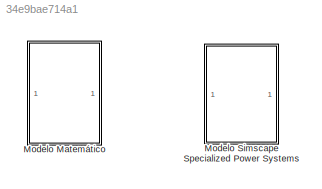
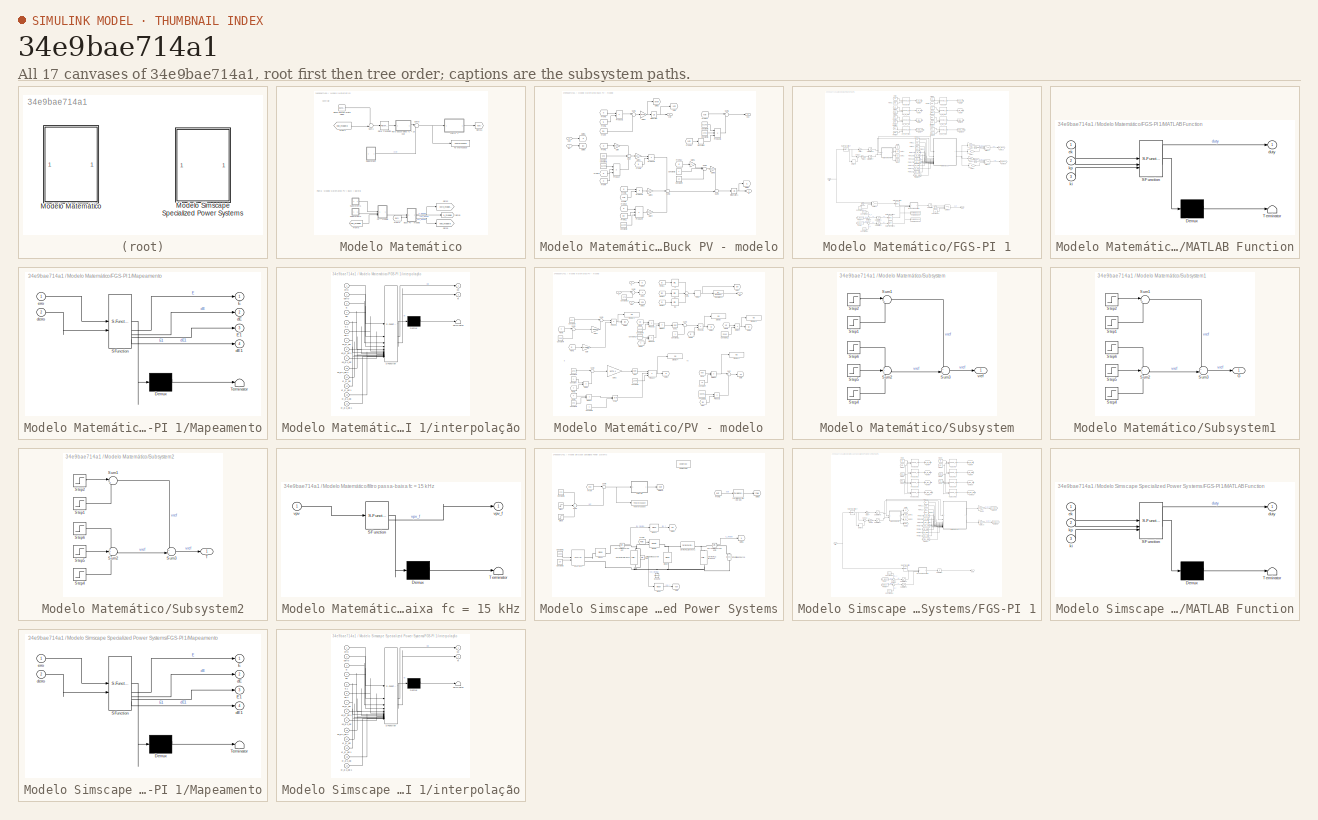
[diagram: thumbnail index - all 17 canvases of the model, root first then tree order]
MODEL slx_34e9bae714a1
KIND model
CONFIG AbsTol = auto
CONFIG EnableMultiTasking = off
CONFIG FixedStep = (1/150000)/3
CONFIG MaxStep = auto
CONFIG MinStep = auto
CONFIG RelTol = 1e-3
CONFIG SampleTimeConstraint = Unconstrained
CONFIG SolverName = FixedStepAuto
CONFIG StartTime = 0
CONFIG StopTime = 0.5
WORKSPACE source: mxarray member
WORKSPACE Var = 20
BLOCK [SubSystem] Modelo Matemático
BLOCK [Reference] Modelo Matemático/Band-Limited White Noise  REF=simulink/Sources/Band-Limited
White Noise
  SourceBlock = simulink/Sources/Band-Limited\nWhite Noise
  SourceType = Band-Limited White Noise.
BLOCK [SubSystem] Modelo Matemático/Buck PV - modelo
BLOCK [Constant] Modelo Matemático/Buck PV - modelo/Constant
  Value = 3e-3
BLOCK [Constant] Modelo Matemático/Buck PV - modelo/Constant1
  Value = 6.519e-3
BLOCK [Constant] Modelo Matemático/Buck PV - modelo/Constant2
  Value = 6.519e-3
BLOCK [Constant] Modelo Matemático/Buck PV - modelo/Constant3
BLOCK [Constant] Modelo Matemático/Buck PV - modelo/Constant4
  Value = 12
BLOCK [Constant] Modelo Matemático/Buck PV - modelo/Constant5
  Value = 6.519e-3
BLOCK [Constant] Modelo Matemático/Buck PV - modelo/Constant6
  Value = 2.7e-3
BLOCK [Derivative] Modelo Matemático/Buck PV - modelo/Derivative
BLOCK [From] Modelo Matemático/Buck PV - modelo/From1
  GotoTag = d
BLOCK [From] Modelo Matemático/Buck PV - modelo/From10
  GotoTag = d
BLOCK [From] Modelo Matemático/Buck PV - modelo/From11
  GotoTag = ipv
BLOCK [From] Modelo Matemático/Buck PV - modelo/From12
  GotoTag = d
BLOCK [From] Modelo Matemático/Buck PV - modelo/From13
  GotoTag = vcin
BLOCK [From] Modelo Matemático/Buck PV - modelo/From14
  GotoTag = vcin
BLOCK [From] Modelo Matemático/Buck PV - modelo/From2
  GotoTag = d
BLOCK [From] Modelo Matemático/Buck PV - modelo/From3
  GotoTag = d
BLOCK [From] Modelo Matemático/Buck PV - modelo/From4
  GotoTag = d
BLOCK [From] Modelo Matemático/Buck PV - modelo/From5
  GotoTag = iL
BLOCK [From] Modelo Matemático/Buck PV - modelo/From6
  GotoTag = iL
BLOCK [From] Modelo Matemático/Buck PV - modelo/From7
  GotoTag = ipv
BLOCK [From] Modelo Matemático/Buck PV - modelo/From8
  GotoTag = d
BLOCK [From] Modelo Matemático/Buck PV - modelo/From9
  GotoTag = vcin
BLOCK [Gain] Modelo Matemático/Buck PV - modelo/Gain
  Gain = 0.15
BLOCK [Gain] Modelo Matemático/Buck PV - modelo/Gain1
  Gain = -1/22.109e-6
BLOCK [Gain] Modelo Matemático/Buck PV - modelo/Gain2
  Gain = 1/2.7e-3
BLOCK [Gain] Modelo Matemático/Buck PV - modelo/Gain3
  Gain = 1/22.109e-6
BLOCK [Gain] Modelo Matemático/Buck PV - modelo/Gain4
  Gain = 1/22.109e-6
BLOCK [Gain] Modelo Matemático/Buck PV - modelo/Gain5
BLOCK [Gain] Modelo Matemático/Buck PV - modelo/Gain6
  Gain = 1/22.109e-6
BLOCK [Goto] Modelo Matemático/Buck PV - modelo/Goto
  GotoTag = vcin
BLOCK [Goto] Modelo Matemático/Buck PV - modelo/Goto1
  GotoTag = iL
BLOCK [Goto] Modelo Matemático/Buck PV - modelo/Goto2
  GotoTag = dvcin
BLOCK [Goto] Modelo Matemático/Buck PV - modelo/Goto5
  GotoTag = d
BLOCK [Goto] Modelo Matemático/Buck PV - modelo/Goto8
  GotoTag = ipv
BLOCK [Integrator] Modelo Matemático/Buck PV - modelo/Integrator
BLOCK [Integrator] Modelo Matemático/Buck PV - modelo/Integrator1
BLOCK [Product] Modelo Matemático/Buck PV - modelo/Product
  Inputs = 3
BLOCK [Product] Modelo Matemático/Buck PV - modelo/Product1
BLOCK [Product] Modelo Matemático/Buck PV - modelo/Product2
BLOCK [Product] Modelo Matemático/Buck PV - modelo/Product3
BLOCK [Product] Modelo Matemático/Buck PV - modelo/Product4
  Inputs = 3
BLOCK [Product] Modelo Matemático/Buck PV - modelo/Product5
  Inputs = 3
BLOCK [Sum] Modelo Matemático/Buck PV - modelo/Sum
  Inputs = ++-
BLOCK [Sum] Modelo Matemático/Buck PV - modelo/Sum1
  Inputs = |-+
BLOCK [Sum] Modelo Matemático/Buck PV - modelo/Sum2
  Inputs = +--
BLOCK [Sum] Modelo Matemático/Buck PV - modelo/Sum3
  Inputs = +++
BLOCK [Sum] Modelo Matemático/Buck PV - modelo/Sum4
  Inputs = ++|
BLOCK [Sum] Modelo Matemático/Buck PV - modelo/Sum5
  Inputs = |++
BLOCK [Inport] Modelo Matemático/Buck PV - modelo/duty
  Port = 2
BLOCK [Outport] Modelo Matemático/Buck PV - modelo/iL
  Port = 2
BLOCK [Inport] Modelo Matemático/Buck PV - modelo/ipv
BLOCK [Outport] Modelo Matemático/Buck PV - modelo/vcin
BLOCK [Outport] Modelo Matemático/Buck PV - modelo/vpv
  Port = 3
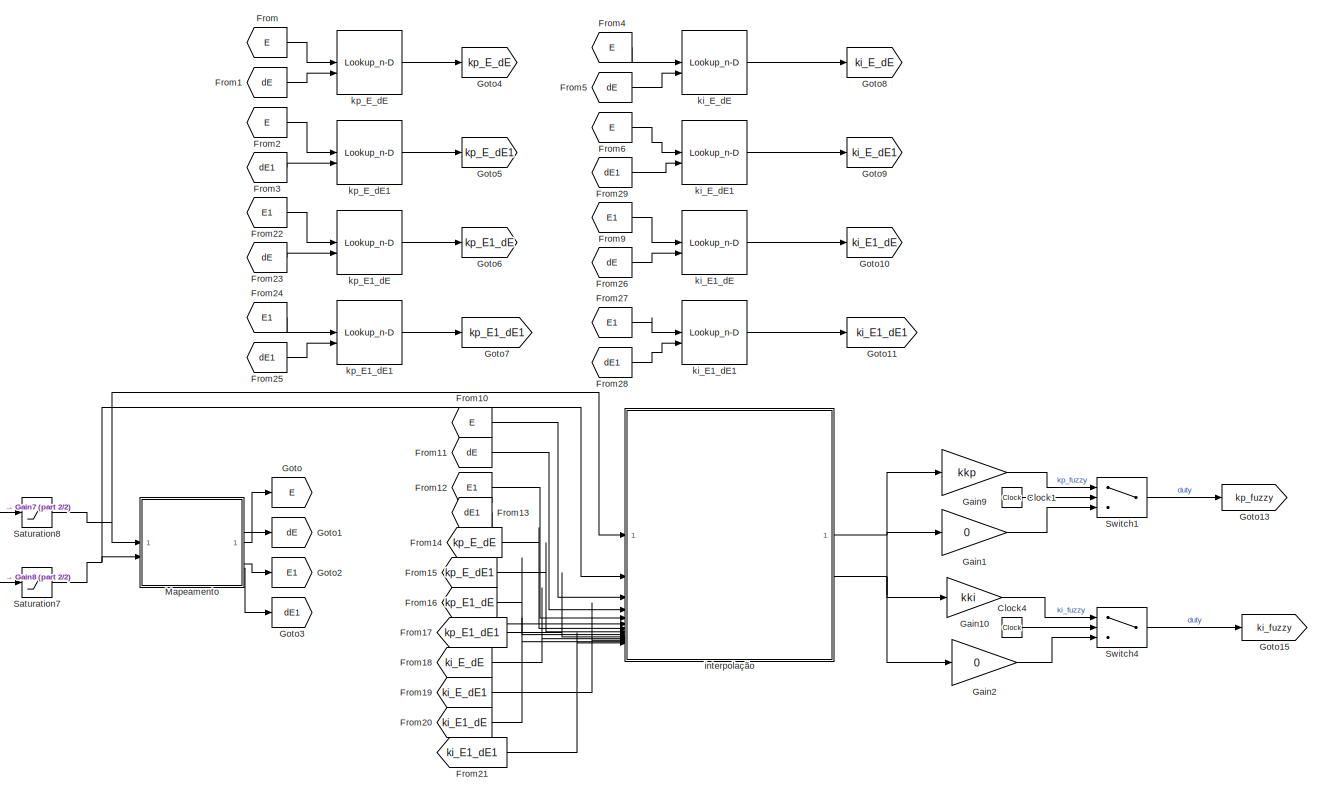
[diagram: Modelo Matemático/FGS-PI 1 - part 1/2, full width, top band]
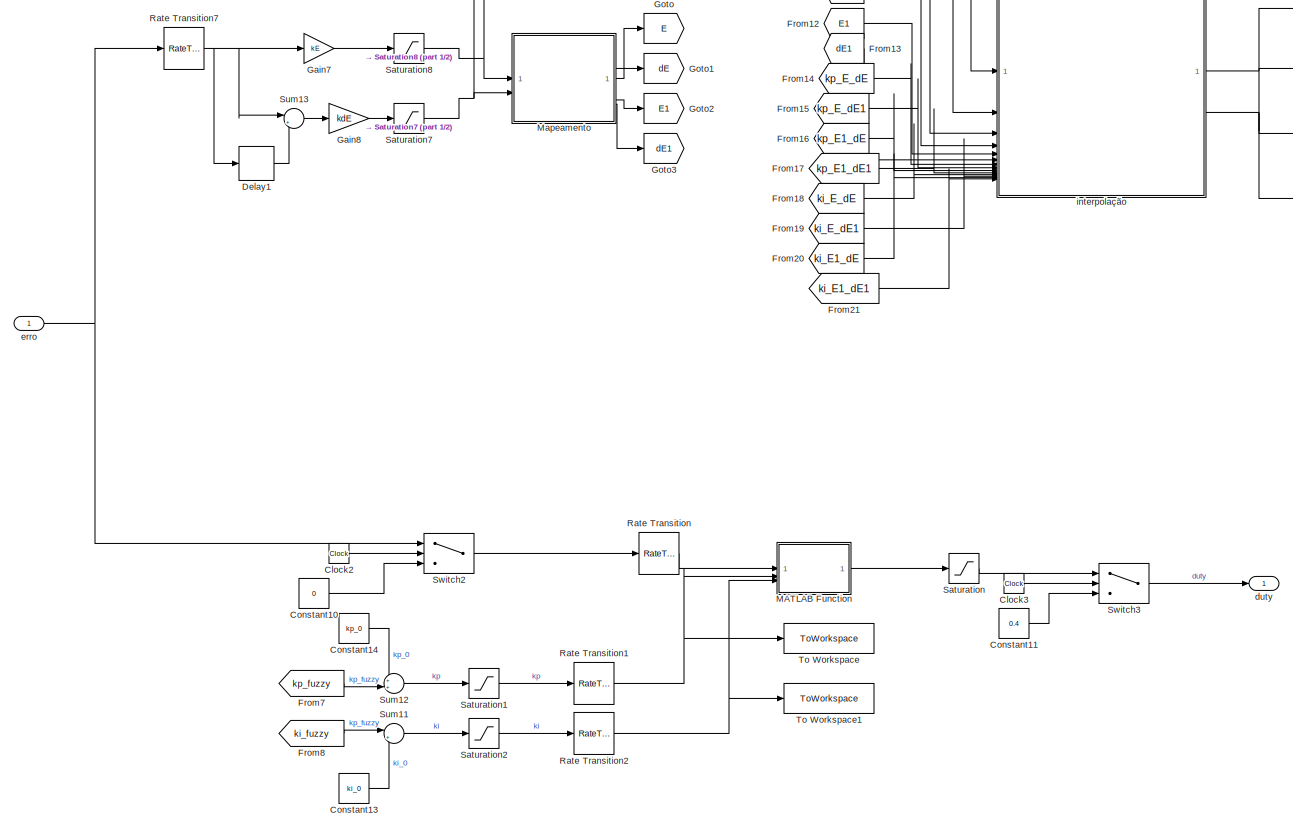
[diagram: Modelo Matemático/FGS-PI 1 - part 2/2, full width, bottom band]
BLOCK [SubSystem] Modelo Matemático/FGS-PI 1
BLOCK [Clock] Modelo Matemático/FGS-PI 1/Clock1
BLOCK [Clock] Modelo Matemático/FGS-PI 1/Clock2
BLOCK [Clock] Modelo Matemático/FGS-PI 1/Clock3
BLOCK [Clock] Modelo Matemático/FGS-PI 1/Clock4
BLOCK [Constant] Modelo Matemático/FGS-PI 1/Constant10
  Value = 0
BLOCK [Constant] Modelo Matemático/FGS-PI 1/Constant11
  Value = 0.4
BLOCK [Constant] Modelo Matemático/FGS-PI 1/Constant13
  Value = ki_0
BLOCK [Constant] Modelo Matemático/FGS-PI 1/Constant14
  Value = kp_0
BLOCK [Delay] Modelo Matemático/FGS-PI 1/Delay1
  DelayLength = 1
  InputPortMap = u0
BLOCK [From] Modelo Matemático/FGS-PI 1/From
  GotoTag = E
BLOCK [From] Modelo Matemático/FGS-PI 1/From1
  GotoTag = dE
BLOCK [From] Modelo Matemático/FGS-PI 1/From10
  GotoTag = E
BLOCK [From] Modelo Matemático/FGS-PI 1/From11
  GotoTag = dE
BLOCK [From] Modelo Matemático/FGS-PI 1/From12
  GotoTag = E1
BLOCK [From] Modelo Matemático/FGS-PI 1/From13
  GotoTag = dE1
BLOCK [From] Modelo Matemático/FGS-PI 1/From14
  GotoTag = kp_E_dE
BLOCK [From] Modelo Matemático/FGS-PI 1/From15
  GotoTag = kp_E_dE1
BLOCK [From] Modelo Matemático/FGS-PI 1/From16
  GotoTag = kp_E1_dE
BLOCK [From] Modelo Matemático/FGS-PI 1/From17
  GotoTag = kp_E1_dE1
BLOCK [From] Modelo Matemático/FGS-PI 1/From18
  GotoTag = ki_E_dE
BLOCK [From] Modelo Matemático/FGS-PI 1/From19
  GotoTag = ki_E_dE1
BLOCK [From] Modelo Matemático/FGS-PI 1/From2
  GotoTag = E
BLOCK [From] Modelo Matemático/FGS-PI 1/From20
  GotoTag = ki_E1_dE
BLOCK [From] Modelo Matemático/FGS-PI 1/From21
  GotoTag = ki_E1_dE1
BLOCK [From] Modelo Matemático/FGS-PI 1/From22
  GotoTag = E1
BLOCK [From] Modelo Matemático/FGS-PI 1/From23
  GotoTag = dE
BLOCK [From] Modelo Matemático/FGS-PI 1/From24
  GotoTag = E1
BLOCK [From] Modelo Matemático/FGS-PI 1/From25
  GotoTag = dE1
BLOCK [From] Modelo Matemático/FGS-PI 1/From26
  GotoTag = dE
BLOCK [From] Modelo Matemático/FGS-PI 1/From27
  GotoTag = E1
BLOCK [From] Modelo Matemático/FGS-PI 1/From28
  GotoTag = dE1
BLOCK [From] Modelo Matemático/FGS-PI 1/From29
  GotoTag = dE1
BLOCK [From] Modelo Matemático/FGS-PI 1/From3
  GotoTag = dE1
BLOCK [From] Modelo Matemático/FGS-PI 1/From4
  GotoTag = E
BLOCK [From] Modelo Matemático/FGS-PI 1/From5
  GotoTag = dE
BLOCK [From] Modelo Matemático/FGS-PI 1/From6
  GotoTag = E
BLOCK [From] Modelo Matemático/FGS-PI 1/From7
  GotoTag = kp_fuzzy
BLOCK [From] Modelo Matemático/FGS-PI 1/From8
  GotoTag = ki_fuzzy
BLOCK [From] Modelo Matemático/FGS-PI 1/From9
  GotoTag = E1
BLOCK [Gain] Modelo Matemático/FGS-PI 1/Gain1
  Gain = 0
BLOCK [Gain] Modelo Matemático/FGS-PI 1/Gain10
  Gain = kki
BLOCK [Gain] Modelo Matemático/FGS-PI 1/Gain2
  Gain = 0
BLOCK [Gain] Modelo Matemático/FGS-PI 1/Gain7
  Gain = kE
BLOCK [Gain] Modelo Matemático/FGS-PI 1/Gain8
  Gain = kdE
BLOCK [Gain] Modelo Matemático/FGS-PI 1/Gain9
  Gain = kkp
BLOCK [Goto] Modelo Matemático/FGS-PI 1/Goto
  GotoTag = E
BLOCK [Goto] Modelo Matemático/FGS-PI 1/Goto1
  GotoTag = dE
BLOCK [Goto] Modelo Matemático/FGS-PI 1/Goto10
  GotoTag = ki_E1_dE
BLOCK [Goto] Modelo Matemático/FGS-PI 1/Goto11
  GotoTag = ki_E1_dE1
BLOCK [Goto] Modelo Matemático/FGS-PI 1/Goto13
  GotoTag = kp_fuzzy
BLOCK [Goto] Modelo Matemático/FGS-PI 1/Goto15
  GotoTag = ki_fuzzy
BLOCK [Goto] Modelo Matemático/FGS-PI 1/Goto2
  GotoTag = E1
BLOCK [Goto] Modelo Matemático/FGS-PI 1/Goto3
  GotoTag = dE1
BLOCK [Goto] Modelo Matemático/FGS-PI 1/Goto4
  GotoTag = kp_E_dE
BLOCK [Goto] Modelo Matemático/FGS-PI 1/Goto5
  GotoTag = kp_E_dE1
BLOCK [Goto] Modelo Matemático/FGS-PI 1/Goto6
  GotoTag = kp_E1_dE
BLOCK [Goto] Modelo Matemático/FGS-PI 1/Goto7
  GotoTag = kp_E1_dE1
BLOCK [Goto] Modelo Matemático/FGS-PI 1/Goto8
  GotoTag = ki_E_dE
BLOCK [Goto] Modelo Matemático/FGS-PI 1/Goto9
  GotoTag = ki_E_dE1
BLOCK [SubSystem] Modelo Matemático/FGS-PI 1/MATLAB Function
  ErrorFcn = Stateflow.Translate.translate
  PermitHierarchicalResolution = ExplicitOnly
  SFBlockType = MATLAB Function
  TreatAsAtomicUnit = on
BLOCK [Demux] Modelo Matemático/FGS-PI 1/MATLAB Function/ Demux 
  Outputs = 1
BLOCK [S-Function] Modelo Matemático/FGS-PI 1/MATLAB Function/ SFunction 
  EnableBusSupport = on
  FunctionName = sf_sfun
  PortCounts = [3 2]
  SFcnIsStateOwnerBlock = off
  SFunctionDeploymentMode = off
  Tag = Stateflow S-Function 16
BLOCK [Terminator] Modelo Matemático/FGS-PI 1/MATLAB Function/ Terminator 
BLOCK [Outport] Modelo Matemático/FGS-PI 1/MATLAB Function/duty
BLOCK [Inport] Modelo Matemático/FGS-PI 1/MATLAB Function/ek
BLOCK [Inport] Modelo Matemático/FGS-PI 1/MATLAB Function/ki
  Port = 3
BLOCK [Inport] Modelo Matemático/FGS-PI 1/MATLAB Function/kp
  Port = 2
BLOCK [SubSystem] Modelo Matemático/FGS-PI 1/Mapeamento
  ErrorFcn = Stateflow.Translate.translate
  PermitHierarchicalResolution = ExplicitOnly
  SFBlockType = MATLAB Function
  TreatAsAtomicUnit = on
BLOCK [Demux] Modelo Matemático/FGS-PI 1/Mapeamento/ Demux 
  Outputs = 1
BLOCK [S-Function] Modelo Matemático/FGS-PI 1/Mapeamento/ SFunction 
  EnableBusSupport = on
  FunctionName = sf_sfun
  PortCounts = [2 5]
  SFcnIsStateOwnerBlock = off
  SFunctionDeploymentMode = off
  Tag = Stateflow S-Function 17
BLOCK [Terminator] Modelo Matemático/FGS-PI 1/Mapeamento/ Terminator 
BLOCK [Outport] Modelo Matemático/FGS-PI 1/Mapeamento/E
BLOCK [Outport] Modelo Matemático/FGS-PI 1/Mapeamento/E1
  Port = 3
BLOCK [Outport] Modelo Matemático/FGS-PI 1/Mapeamento/dE
  Port = 2
BLOCK [Outport] Modelo Matemático/FGS-PI 1/Mapeamento/dE1
  Port = 4
BLOCK [Inport] Modelo Matemático/FGS-PI 1/Mapeamento/derro
  Port = 2
BLOCK [Inport] Modelo Matemático/FGS-PI 1/Mapeamento/erro
BLOCK [RateTransition] Modelo Matemático/FGS-PI 1/Rate Transition
  OutPortSampleTime = (1/150000)
BLOCK [RateTransition] Modelo Matemático/FGS-PI 1/Rate Transition1
  OutPortSampleTime = (1/150000)
BLOCK [RateTransition] Modelo Matemático/FGS-PI 1/Rate Transition2
  OutPortSampleTime = (1/150000)
BLOCK [RateTransition] Modelo Matemático/FGS-PI 1/Rate Transition7
  OutPortSampleTime = (1/150000)*3
BLOCK [Saturate] Modelo Matemático/FGS-PI 1/Saturation
  LowerLimit = 0
  UpperLimit = 1
BLOCK [Saturate] Modelo Matemático/FGS-PI 1/Saturation1
  LowerLimit = 0
  UpperLimit = 10
BLOCK [Saturate] Modelo Matemático/FGS-PI 1/Saturation2
  LowerLimit = 0
  UpperLimit = 10
BLOCK [Saturate] Modelo Matemático/FGS-PI 1/Saturation7
  LowerLimit = -1
  UpperLimit = 1
BLOCK [Saturate] Modelo Matemático/FGS-PI 1/Saturation8
  LowerLimit = -1
  UpperLimit = 1
BLOCK [Sum] Modelo Matemático/FGS-PI 1/Sum11
  Inputs = |++
BLOCK [Sum] Modelo Matemático/FGS-PI 1/Sum12
  Inputs = ++|
BLOCK [Sum] Modelo Matemático/FGS-PI 1/Sum13
  Inputs = |+-
BLOCK [Switch] Modelo Matemático/FGS-PI 1/Switch1
  Criteria = u2 > Threshold
  InputSameDT = off
  SaturateOnIntegerOverflow = off
  Threshold = 0.1
BLOCK [Switch] Modelo Matemático/FGS-PI 1/Switch2
  Criteria = u2 > Threshold
  InputSameDT = off
  SaturateOnIntegerOverflow = off
  Threshold = 0.01
BLOCK [Switch] Modelo Matemático/FGS-PI 1/Switch3
  Criteria = u2 > Threshold
  InputSameDT = off
  SaturateOnIntegerOverflow = off
  Threshold = 0.01
BLOCK [Switch] Modelo Matemático/FGS-PI 1/Switch4
  Criteria = u2 > Threshold
  InputSameDT = off
  SaturateOnIntegerOverflow = off
  Threshold = 0.1
BLOCK [ToWorkspace] Modelo Matemático/FGS-PI 1/To Workspace
  FixptAsFi = on
  MaxDataPoints = inf
  SampleTime = -1
  SaveFormat = Timeseries
  VariableName = kp
BLOCK [ToWorkspace] Modelo Matemático/FGS-PI 1/To Workspace1
  FixptAsFi = on
  MaxDataPoints = inf
  SampleTime = -1
  SaveFormat = Timeseries
  VariableName = ki
BLOCK [Outport] Modelo Matemático/FGS-PI 1/duty
BLOCK [Inport] Modelo Matemático/FGS-PI 1/erro
BLOCK [SubSystem] Modelo Matemático/FGS-PI 1/interpolação
  ErrorFcn = Stateflow.Translate.translate
  PermitHierarchicalResolution = ExplicitOnly
  SFBlockType = MATLAB Function
  TreatAsAtomicUnit = on
BLOCK [Demux] Modelo Matemático/FGS-PI 1/interpolação/ Demux 
  Outputs = 1
BLOCK [S-Function] Modelo Matemático/FGS-PI 1/interpolação/ SFunction 
  EnableBusSupport = on
  FunctionName = sf_sfun
  PortCounts = [14 3]
  SFcnIsStateOwnerBlock = off
  SFunctionDeploymentMode = off
  Tag = Stateflow S-Function 18
BLOCK [Terminator] Modelo Matemático/FGS-PI 1/interpolação/ Terminator 
BLOCK [Inport] Modelo Matemático/FGS-PI 1/interpolação/E
  Port = 3
BLOCK [Inport] Modelo Matemático/FGS-PI 1/interpolação/E1
  Port = 5
BLOCK [Inport] Modelo Matemático/FGS-PI 1/interpolação/dE
  Port = 4
BLOCK [Inport] Modelo Matemático/FGS-PI 1/interpolação/dE1
  Port = 6
BLOCK [Inport] Modelo Matemático/FGS-PI 1/interpolação/derro
  Port = 2
BLOCK [Inport] Modelo Matemático/FGS-PI 1/interpolação/erro
BLOCK [Outport] Modelo Matemático/FGS-PI 1/interpolação/ki
  Port = 2
BLOCK [Inport] Modelo Matemático/FGS-PI 1/interpolação/ki_E1_dE
  Port = 13
BLOCK [Inport] Modelo Matemático/FGS-PI 1/interpolação/ki_E1_dE1
  Port = 14
BLOCK [Inport] Modelo Matemático/FGS-PI 1/interpolação/ki_E_dE
  Port = 11
BLOCK [Inport] Modelo Matemático/FGS-PI 1/interpolação/ki_E_dE1
  Port = 12
BLOCK [Outport] Modelo Matemático/FGS-PI 1/interpolação/kp
BLOCK [Inport] Modelo Matemático/FGS-PI 1/interpolação/kp_E1_dE
  Port = 9
BLOCK [Inport] Modelo Matemático/FGS-PI 1/interpolação/kp_E1_dE1
  Port = 10
BLOCK [Inport] Modelo Matemático/FGS-PI 1/interpolação/kp_E_dE
  Port = 7
BLOCK [Inport] Modelo Matemático/FGS-PI 1/interpolação/kp_E_dE1
  Port = 8
BLOCK [Lookup_n-D] Modelo Matemático/FGS-PI 1/ki_E1_dE
  BreakpointsForDimension1 = [1:n_pontos+1]
  BreakpointsForDimension1FirstPoint = 10
  BreakpointsForDimension1Spacing = 12
  BreakpointsForDimension2 = [1:n_pontos+1]
  BreakpointsForDimension2FirstPoint = 10
  BreakpointsForDimension2Spacing = 12
  DiagnosticForOutOfRangeInput = Error
  IndexSearchMethod = Evenly spaced points
  InputPortMap = u0,u1
  InternalRulePriority = Speed
  InterpMethod = Flat
  LookupTableObject = ''
  RndMeth = Simplest
  Table = ki
BLOCK [Lookup_n-D] Modelo Matemático/FGS-PI 1/ki_E1_dE1
  BreakpointsForDimension1 = [1:n_pontos+1]
  BreakpointsForDimension1FirstPoint = 10
  BreakpointsForDimension1Spacing = 12
  BreakpointsForDimension2 = [1:n_pontos+1]
  BreakpointsForDimension2FirstPoint = 10
  BreakpointsForDimension2Spacing = 12
  DiagnosticForOutOfRangeInput = Error
  IndexSearchMethod = Evenly spaced points
  InputPortMap = u0,u1
  InternalRulePriority = Speed
  InterpMethod = Flat
  LookupTableObject = ''
  RndMeth = Simplest
  Table = ki
BLOCK [Lookup_n-D] Modelo Matemático/FGS-PI 1/ki_E_dE
  BreakpointsForDimension1 = [1:n_pontos+1]
  BreakpointsForDimension1FirstPoint = 10
  BreakpointsForDimension1Spacing = 12
  BreakpointsForDimension2 = [1:n_pontos+1]
  BreakpointsForDimension2FirstPoint = 10
  BreakpointsForDimension2Spacing = 12
  DiagnosticForOutOfRangeInput = Error
  IndexSearchMethod = Evenly spaced points
  InputPortMap = u0,u1
  InternalRulePriority = Speed
  InterpMethod = Flat
  LookupTableObject = ''
  RndMeth = Simplest
  Table = ki
BLOCK [Lookup_n-D] Modelo Matemático/FGS-PI 1/ki_E_dE1
  BreakpointsForDimension1 = [1:n_pontos+1]
  BreakpointsForDimension1FirstPoint = 10
  BreakpointsForDimension1Spacing = 12
  BreakpointsForDimension2 = [1:n_pontos+1]
  BreakpointsForDimension2FirstPoint = 10
  BreakpointsForDimension2Spacing = 12
  DiagnosticForOutOfRangeInput = Error
  IndexSearchMethod = Evenly spaced points
  InputPortMap = u0,u1
  InternalRulePriority = Speed
  InterpMethod = Flat
  LookupTableObject = ''
  RndMeth = Simplest
  Table = ki
BLOCK [Lookup_n-D] Modelo Matemático/FGS-PI 1/kp_E1_dE
  BreakpointsForDimension1 = [1:n_pontos+1]
  BreakpointsForDimension1FirstPoint = 10
  BreakpointsForDimension1Spacing = 12
  BreakpointsForDimension2 = [1:n_pontos+1]
  BreakpointsForDimension2FirstPoint = 10
  BreakpointsForDimension2Spacing = 12
  DiagnosticForOutOfRangeInput = Error
  IndexSearchMethod = Evenly spaced points
  InputPortMap = u0,u1
  InternalRulePriority = Speed
  InterpMethod = Flat
  LookupTableObject = ''
  RndMeth = Simplest
  Table = kp
BLOCK [Lookup_n-D] Modelo Matemático/FGS-PI 1/kp_E1_dE1
  BreakpointsForDimension1 = [1:n_pontos+1]
  BreakpointsForDimension1FirstPoint = 10
  BreakpointsForDimension1Spacing = 12
  BreakpointsForDimension2 = [1:n_pontos+1]
  BreakpointsForDimension2FirstPoint = 10
  BreakpointsForDimension2Spacing = 12
  DiagnosticForOutOfRangeInput = Error
  IndexSearchMethod = Evenly spaced points
  InputPortMap = u0,u1
  InternalRulePriority = Speed
  InterpMethod = Flat
  LookupTableObject = ''
  RndMeth = Simplest
  Table = kp
BLOCK [Lookup_n-D] Modelo Matemático/FGS-PI 1/kp_E_dE
  BreakpointsForDimension1 = [1:n_pontos+1]
  BreakpointsForDimension1FirstPoint = 10
  BreakpointsForDimension1Spacing = 12
  BreakpointsForDimension2 = [1:n_pontos+1]
  BreakpointsForDimension2FirstPoint = 10
  BreakpointsForDimension2Spacing = 12
  DiagnosticForOutOfRangeInput = Error
  IndexSearchMethod = Evenly spaced points
  InputPortMap = u0,u1
  InternalRulePriority = Speed
  InterpMethod = Flat
  LookupTableObject = ''
  RndMeth = Simplest
  Table = kp
BLOCK [Lookup_n-D] Modelo Matemático/FGS-PI 1/kp_E_dE1
  BreakpointsForDimension1 = [1:n_pontos+1]
  BreakpointsForDimension1FirstPoint = 10
  BreakpointsForDimension1Spacing = 12
  BreakpointsForDimension2 = [1:n_pontos+1]
  BreakpointsForDimension2FirstPoint = 10
  BreakpointsForDimension2Spacing = 12
  DiagnosticForOutOfRangeInput = Error
  IndexSearchMethod = Evenly spaced points
  InputPortMap = u0,u1
  InternalRulePriority = Speed
  InterpMethod = Flat
  LookupTableObject = ''
  RndMeth = Simplest
  Table = kp
BLOCK [From] Modelo Matemático/From3
  GotoTag = duty
BLOCK [From] Modelo Matemático/From4
  GotoTag = vpv_modelo
BLOCK [From] Modelo Matemático/From6
  GotoTag = vpv_modelo
BLOCK [Goto] Modelo Matemático/Goto11
  GotoTag = duty
BLOCK [Goto] Modelo Matemático/Goto2
  GotoTag = vcin_modelo
BLOCK [Goto] Modelo Matemático/Goto5
  GotoTag = iL_modelo
BLOCK [Goto] Modelo Matemático/Goto9
  GotoTag = vpv_modelo
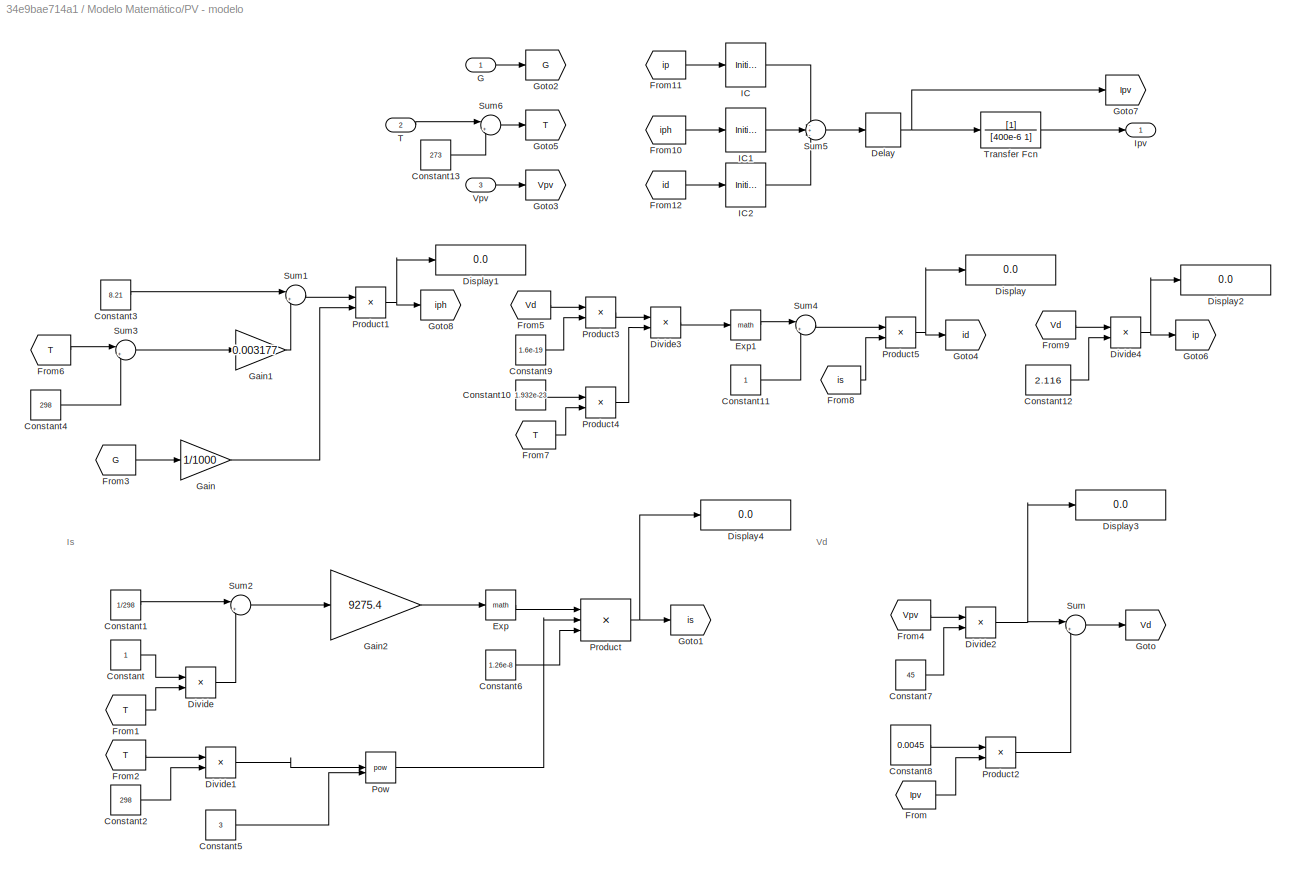
BLOCK [SubSystem] Modelo Matemático/PV - modelo
BLOCK [Constant] Modelo Matemático/PV - modelo/Constant
BLOCK [Constant] Modelo Matemático/PV - modelo/Constant1
  Value = 1/298
BLOCK [Constant] Modelo Matemático/PV - modelo/Constant10
  Value = 1.932e-23
BLOCK [Constant] Modelo Matemático/PV - modelo/Constant11
BLOCK [Constant] Modelo Matemático/PV - modelo/Constant12
  Value = 2.116
BLOCK [Constant] Modelo Matemático/PV - modelo/Constant13
  Value = 273
BLOCK [Constant] Modelo Matemático/PV - modelo/Constant2
  Value = 298
BLOCK [Constant] Modelo Matemático/PV - modelo/Constant3
  Value = 8.21
BLOCK [Constant] Modelo Matemático/PV - modelo/Constant4
  Value = 298
BLOCK [Constant] Modelo Matemático/PV - modelo/Constant5
  Value = 3
BLOCK [Constant] Modelo Matemático/PV - modelo/Constant6
  Value = 1.26e-8
BLOCK [Constant] Modelo Matemático/PV - modelo/Constant7
  Value = 45
BLOCK [Constant] Modelo Matemático/PV - modelo/Constant8
  Value = 0.0045
BLOCK [Constant] Modelo Matemático/PV - modelo/Constant9
  Value = 1.6e-19
BLOCK [Delay] Modelo Matemático/PV - modelo/Delay
  Commented = through
  DelayLength = 1
  InputPortMap = u0
BLOCK [Display] Modelo Matemático/PV - modelo/Display
  Decimation = 1
BLOCK [Display] Modelo Matemático/PV - modelo/Display1
  Decimation = 1
BLOCK [Display] Modelo Matemático/PV - modelo/Display2
  Decimation = 1
BLOCK [Display] Modelo Matemático/PV - modelo/Display3
  Decimation = 1
BLOCK [Display] Modelo Matemático/PV - modelo/Display4
  Decimation = 1
BLOCK [Product] Modelo Matemático/PV - modelo/Divide
  Inputs = */
BLOCK [Product] Modelo Matemático/PV - modelo/Divide1
  Inputs = */
BLOCK [Product] Modelo Matemático/PV - modelo/Divide2
  Inputs = */
BLOCK [Product] Modelo Matemático/PV - modelo/Divide3
  Inputs = */
BLOCK [Product] Modelo Matemático/PV - modelo/Divide4
  Inputs = */
BLOCK [Math] Modelo Matemático/PV - modelo/Exp
BLOCK [Math] Modelo Matemático/PV - modelo/Exp1
BLOCK [From] Modelo Matemático/PV - modelo/From
  GotoTag = Ipv
BLOCK [From] Modelo Matemático/PV - modelo/From1
  GotoTag = T
BLOCK [From] Modelo Matemático/PV - modelo/From10
  GotoTag = iph
BLOCK [From] Modelo Matemático/PV - modelo/From11
  GotoTag = ip
BLOCK [From] Modelo Matemático/PV - modelo/From12
  GotoTag = id
BLOCK [From] Modelo Matemático/PV - modelo/From2
  GotoTag = T
BLOCK [From] Modelo Matemático/PV - modelo/From3
  GotoTag = G
BLOCK [From] Modelo Matemático/PV - modelo/From4
  GotoTag = Vpv
BLOCK [From] Modelo Matemático/PV - modelo/From5
  GotoTag = Vd
BLOCK [From] Modelo Matemático/PV - modelo/From6
  GotoTag = T
BLOCK [From] Modelo Matemático/PV - modelo/From7
  GotoTag = T
BLOCK [From] Modelo Matemático/PV - modelo/From8
  GotoTag = is
BLOCK [From] Modelo Matemático/PV - modelo/From9
  GotoTag = Vd
BLOCK [Inport] Modelo Matemático/PV - modelo/G
BLOCK [Gain] Modelo Matemático/PV - modelo/Gain
  Gain = 1/1000
BLOCK [Gain] Modelo Matemático/PV - modelo/Gain1
  Gain = 0.003177
BLOCK [Gain] Modelo Matemático/PV - modelo/Gain2
  Gain = 9275.4
BLOCK [Goto] Modelo Matemático/PV - modelo/Goto
  GotoTag = Vd
BLOCK [Goto] Modelo Matemático/PV - modelo/Goto1
  GotoTag = is
BLOCK [Goto] Modelo Matemático/PV - modelo/Goto2
  GotoTag = G
BLOCK [Goto] Modelo Matemático/PV - modelo/Goto3
  GotoTag = Vpv
BLOCK [Goto] Modelo Matemático/PV - modelo/Goto4
  GotoTag = id
BLOCK [Goto] Modelo Matemático/PV - modelo/Goto5
  GotoTag = T
BLOCK [Goto] Modelo Matemático/PV - modelo/Goto6
  GotoTag = ip
BLOCK [Goto] Modelo Matemático/PV - modelo/Goto7
  GotoTag = Ipv
BLOCK [Goto] Modelo Matemático/PV - modelo/Goto8
  GotoTag = iph
BLOCK [InitialCondition] Modelo Matemático/PV - modelo/IC
  Value = 0
BLOCK [InitialCondition] Modelo Matemático/PV - modelo/IC1
  Value = 0
BLOCK [InitialCondition] Modelo Matemático/PV - modelo/IC2
  Value = 0
BLOCK [Outport] Modelo Matemático/PV - modelo/Ipv
BLOCK [Math] Modelo Matemático/PV - modelo/Pow
  Operator = pow
  RndMeth = Zero
  SignedPower = on
BLOCK [Product] Modelo Matemático/PV - modelo/Product
  Inputs = 3
BLOCK [Product] Modelo Matemático/PV - modelo/Product1
BLOCK [Product] Modelo Matemático/PV - modelo/Product2
BLOCK [Product] Modelo Matemático/PV - modelo/Product3
BLOCK [Product] Modelo Matemático/PV - modelo/Product4
BLOCK [Product] Modelo Matemático/PV - modelo/Product5
BLOCK [Sum] Modelo Matemático/PV - modelo/Sum
  Inputs = |++
BLOCK [Sum] Modelo Matemático/PV - modelo/Sum1
  Inputs = |++
BLOCK [Sum] Modelo Matemático/PV - modelo/Sum2
  Inputs = |+-
BLOCK [Sum] Modelo Matemático/PV - modelo/Sum3
  Inputs = |+-
BLOCK [Sum] Modelo Matemático/PV - modelo/Sum4
  Inputs = |+-
BLOCK [Sum] Modelo Matemático/PV - modelo/Sum5
  Inputs = -+-
BLOCK [Sum] Modelo Matemático/PV - modelo/Sum6
  Inputs = |++
BLOCK [Inport] Modelo Matemático/PV - modelo/T
  Port = 2
BLOCK [TransferFcn] Modelo Matemático/PV - modelo/Transfer Fcn
  Denominator = [400e-6 1]
BLOCK [Inport] Modelo Matemático/PV - modelo/Vpv
  Port = 3
BLOCK [RateTransition] Modelo Matemático/Rate Transition
  OutPortSampleTime = 1/150000
BLOCK [SubSystem] Modelo Matemático/Subsystem
BLOCK [Step] Modelo Matemático/Subsystem/Step1
  After = 0.5
  SampleTime = 0
  Time = 0.15
BLOCK [Step] Modelo Matemático/Subsystem/Step2
  After = 25.7
  SampleTime = 0
  Time = 0
BLOCK [Step] Modelo Matemático/Subsystem/Step4
  After = -0.8
  SampleTime = 0
  Time = 0.45
BLOCK [Step] Modelo Matemático/Subsystem/Step5
  After = -0.3
  SampleTime = 0
  Time = 0.35
BLOCK [Step] Modelo Matemático/Subsystem/Step6
  After = -0.8
  SampleTime = 0
  Time = 0.25
BLOCK [Sum] Modelo Matemático/Subsystem/Sum1
  Inputs = |++
BLOCK [Sum] Modelo Matemático/Subsystem/Sum2
  Inputs = +++
BLOCK [Sum] Modelo Matemático/Subsystem/Sum3
  Inputs = ++|
BLOCK [Outport] Modelo Matemático/Subsystem/vref
BLOCK [SubSystem] Modelo Matemático/Subsystem1
BLOCK [Outport] Modelo Matemático/Subsystem1/G
BLOCK [Step] Modelo Matemático/Subsystem1/Step1
  After = (562-165)
  SampleTime = 0
  Time = 0.1
BLOCK [Step] Modelo Matemático/Subsystem1/Step2
  After = 165
  SampleTime = 0
  Time = 0
BLOCK [Step] Modelo Matemático/Subsystem1/Step4
  After = (186-570)
  SampleTime = 0
  Time = 0.4
BLOCK [Step] Modelo Matemático/Subsystem1/Step5
  After = (570-767)
  SampleTime = 0
  Time = 0.3
BLOCK [Step] Modelo Matemático/Subsystem1/Step6
  After = (767-562)
  SampleTime = 0
  Time = 0.2
BLOCK [Sum] Modelo Matemático/Subsystem1/Sum1
  Inputs = |++
BLOCK [Sum] Modelo Matemático/Subsystem1/Sum2
  Inputs = +++
BLOCK [Sum] Modelo Matemático/Subsystem1/Sum3
  Inputs = ++|
BLOCK [SubSystem] Modelo Matemático/Subsystem2
BLOCK [Step] Modelo Matemático/Subsystem2/Step1
  After = (27-12)
  SampleTime = 0
  Time = 0.1
BLOCK [Step] Modelo Matemático/Subsystem2/Step2
  After = 12
  SampleTime = 0
  Time = 0
BLOCK [Step] Modelo Matemático/Subsystem2/Step4
  After = 30-40
  SampleTime = 0
  Time = 0.4
BLOCK [Step] Modelo Matemático/Subsystem2/Step5
  After = 0
  SampleTime = 0
  Time = 0.3
BLOCK [Step] Modelo Matemático/Subsystem2/Step6
  After = (40-27)
  SampleTime = 0
  Time = 0.2
BLOCK [Sum] Modelo Matemático/Subsystem2/Sum1
  Inputs = |++
BLOCK [Sum] Modelo Matemático/Subsystem2/Sum2
  Inputs = +++
BLOCK [Sum] Modelo Matemático/Subsystem2/Sum3
  Inputs = ++|
BLOCK [Outport] Modelo Matemático/Subsystem2/T
BLOCK [Sum] Modelo Matemático/Sum1
  Inputs = ++|
BLOCK [Sum] Modelo Matemático/Sum8
  Inputs = |+-
BLOCK [ToWorkspace] Modelo Matemático/To Workspace
  FixptAsFi = on
  MaxDataPoints = inf
  SampleTime = -1
  SaveFormat = Timeseries
  VariableName = erro
BLOCK [SubSystem] Modelo Matemático/filtro passa-baixa fc = 15 kHz
  ErrorFcn = Stateflow.Translate.translate
  PermitHierarchicalResolution = ExplicitOnly
  SFBlockType = MATLAB Function
  TreatAsAtomicUnit = on
BLOCK [Demux] Modelo Matemático/filtro passa-baixa fc = 15 kHz/ Demux 
  Outputs = 1
BLOCK [S-Function] Modelo Matemático/filtro passa-baixa fc = 15 kHz/ SFunction 
  EnableBusSupport = on
  FunctionName = sf_sfun
  PortCounts = [1 2]
  SFcnIsStateOwnerBlock = off
  SFunctionDeploymentMode = off
  Tag = Stateflow S-Function 4
BLOCK [Terminator] Modelo Matemático/filtro passa-baixa fc = 15 kHz/ Terminator 
BLOCK [Inport] Modelo Matemático/filtro passa-baixa fc = 15 kHz/vpv
BLOCK [Outport] Modelo Matemático/filtro passa-baixa fc = 15 kHz/vpv_f
BLOCK [SubSystem] Modelo Simscape Specialized Power Systems
  Commented = on
BLOCK [Constant] Modelo Simscape Specialized Power Systems/Constant1
  Value = 1000
BLOCK [Constant] Modelo Simscape Specialized Power Systems/Constant2
  Value = 25
BLOCK [Constant] Modelo Simscape Specialized Power Systems/Constant5
  Value = 37.3
BLOCK [Reference] Modelo Simscape Specialized Power Systems/Current Measurement  REF=spsCurrentMeasurementLib/Current Measurement
  SourceBlock = spsCurrentMeasurementLib/Current Measurement
  SourceType = Current Measurement
  UserDataPersistent = on
BLOCK [Reference] Modelo Simscape Specialized Power Systems/Current Measurement1  REF=spsCurrentMeasurementLib/Current Measurement
  SourceBlock = spsCurrentMeasurementLib/Current Measurement
  SourceType = Current Measurement
  UserDataPersistent = on
BLOCK [Reference] Modelo Simscape Specialized Power Systems/DC Voltage Source  REF=spsDCVoltageSourceLib/DC Voltage Source
  SourceBlock = spsDCVoltageSourceLib/DC Voltage Source
  SourceType = DC Voltage Source
BLOCK [Reference] Modelo Simscape Specialized Power Systems/Diode  REF=spsDiodeLib/Diode
  NameLocation = right
  SourceBlock = spsDiodeLib/Diode
  SourceType = Diode
BLOCK [Reference] Modelo Simscape Specialized Power Systems/Diode1  REF=spsDiodeLib/Diode
  LibrarySourceBlock = sps_lib/Power Electronics/Diode
  SourceBlock = spsDiodeLib/Diode
  SourceType = Diode
BLOCK [SubSystem] Modelo Simscape Specialized Power Systems/FGS-PI 1
BLOCK [Constant] Modelo Simscape Specialized Power Systems/FGS-PI 1/Constant13
  Value = ki_0
BLOCK [Constant] Modelo Simscape Specialized Power Systems/FGS-PI 1/Constant14
  Value = kp_0
BLOCK [Delay] Modelo Simscape Specialized Power Systems/FGS-PI 1/Delay1
  DelayLength = 1
  InputPortMap = u0
BLOCK [From] Modelo Simscape Specialized Power Systems/FGS-PI 1/From
  GotoTag = E
BLOCK [From] Modelo Simscape Specialized Power Systems/FGS-PI 1/From1
  GotoTag = dE
BLOCK [From] Modelo Simscape Specialized Power Systems/FGS-PI 1/From10
  GotoTag = E
BLOCK [From] Modelo Simscape Specialized Power Systems/FGS-PI 1/From11
  GotoTag = dE
BLOCK [From] Modelo Simscape Specialized Power Systems/FGS-PI 1/From12
  GotoTag = E1
BLOCK [From] Modelo Simscape Specialized Power Systems/FGS-PI 1/From13
  GotoTag = dE1
BLOCK [From] Modelo Simscape Specialized Power Systems/FGS-PI 1/From14
  GotoTag = kp_E_dE
BLOCK [From] Modelo Simscape Specialized Power Systems/FGS-PI 1/From15
  GotoTag = kp_E_dE1
BLOCK [From] Modelo Simscape Specialized Power Systems/FGS-PI 1/From16
  GotoTag = kp_E1_dE
BLOCK [From] Modelo Simscape Specialized Power Systems/FGS-PI 1/From17
  GotoTag = kp_E1_dE1
BLOCK [From] Modelo Simscape Specialized Power Systems/FGS-PI 1/From18
  GotoTag = ki_E_dE
BLOCK [From] Modelo Simscape Specialized Power Systems/FGS-PI 1/From19
  GotoTag = ki_E_dE1
BLOCK [From] Modelo Simscape Specialized Power Systems/FGS-PI 1/From2
  GotoTag = E1
BLOCK [From] Modelo Simscape Specialized Power Systems/FGS-PI 1/From20
  GotoTag = ki_E1_dE
BLOCK [From] Modelo Simscape Specialized Power Systems/FGS-PI 1/From21
  GotoTag = ki_E1_dE1
BLOCK [From] Modelo Simscape Specialized Power Systems/FGS-PI 1/From3
  GotoTag = dE1
BLOCK [From] Modelo Simscape Specialized Power Systems/FGS-PI 1/From4
  GotoTag = E
BLOCK [From] Modelo Simscape Specialized Power Systems/FGS-PI 1/From5
  GotoTag = dE
BLOCK [From] Modelo Simscape Specialized Power Systems/FGS-PI 1/From6
  GotoTag = E1
BLOCK [From] Modelo Simscape Specialized Power Systems/FGS-PI 1/From7
  GotoTag = kp_fuzzy
BLOCK [From] Modelo Simscape Specialized Power Systems/FGS-PI 1/From8
  GotoTag = ki_fuzzy
BLOCK [From] Modelo Simscape Specialized Power Systems/FGS-PI 1/From9
  GotoTag = dE1
BLOCK [Gain] Modelo Simscape Specialized Power Systems/FGS-PI 1/Gain10
  Gain = kki
BLOCK [Gain] Modelo Simscape Specialized Power Systems/FGS-PI 1/Gain7
  Gain = kE
BLOCK [Gain] Modelo Simscape Specialized Power Systems/FGS-PI 1/Gain8
  Gain = kdE
BLOCK [Gain] Modelo Simscape Specialized Power Systems/FGS-PI 1/Gain9
  Gain = kkp
BLOCK [Goto] Modelo Simscape Specialized Power Systems/FGS-PI 1/Goto
  GotoTag = E
BLOCK [Goto] Modelo Simscape Specialized Power Systems/FGS-PI 1/Goto1
  GotoTag = dE
BLOCK [Goto] Modelo Simscape Specialized Power Systems/FGS-PI 1/Goto10
  GotoTag = ki_E1_dE
BLOCK [Goto] Modelo Simscape Specialized Power Systems/FGS-PI 1/Goto11
  GotoTag = ki_E1_dE1
BLOCK [Goto] Modelo Simscape Specialized Power Systems/FGS-PI 1/Goto13
  GotoTag = kp_fuzzy
BLOCK [Goto] Modelo Simscape Specialized Power Systems/FGS-PI 1/Goto15
  GotoTag = ki_fuzzy
BLOCK [Goto] Modelo Simscape Specialized Power Systems/FGS-PI 1/Goto2
  GotoTag = E1
BLOCK [Goto] Modelo Simscape Specialized Power Systems/FGS-PI 1/Goto3
  GotoTag = dE1
BLOCK [Goto] Modelo Simscape Specialized Power Systems/FGS-PI 1/Goto4
  GotoTag = kp_E_dE
BLOCK [Goto] Modelo Simscape Specialized Power Systems/FGS-PI 1/Goto5
  GotoTag = kp_E_dE1
BLOCK [Goto] Modelo Simscape Specialized Power Systems/FGS-PI 1/Goto6
  GotoTag = kp_E1_dE
BLOCK [Goto] Modelo Simscape Specialized Power Systems/FGS-PI 1/Goto7
  GotoTag = kp_E1_dE1
BLOCK [Goto] Modelo Simscape Specialized Power Systems/FGS-PI 1/Goto8
  GotoTag = ki_E_dE
BLOCK [Goto] Modelo Simscape Specialized Power Systems/FGS-PI 1/Goto9
  GotoTag = ki_E_dE1
BLOCK [SubSystem] Modelo Simscape Specialized Power Systems/FGS-PI 1/MATLAB Function
  ErrorFcn = Stateflow.Translate.translate
  PermitHierarchicalResolution = ExplicitOnly
  SFBlockType = MATLAB Function
  TreatAsAtomicUnit = on
BLOCK [Demux] Modelo Simscape Specialized Power Systems/FGS-PI 1/MATLAB Function/ Demux 
  Outputs = 1
BLOCK [S-Function] Modelo Simscape Specialized Power Systems/FGS-PI 1/MATLAB Function/ SFunction 
  EnableBusSupport = on
  FunctionName = sf_sfun
  PortCounts = [3 2]
  SFcnIsStateOwnerBlock = off
  SFunctionDeploymentMode = off
  Tag = Stateflow S-Function 1
BLOCK [Terminator] Modelo Simscape Specialized Power Systems/FGS-PI 1/MATLAB Function/ Terminator 
BLOCK [Outport] Modelo Simscape Specialized Power Systems/FGS-PI 1/MATLAB Function/duty
BLOCK [Inport] Modelo Simscape Specialized Power Systems/FGS-PI 1/MATLAB Function/ek
BLOCK [Inport] Modelo Simscape Specialized Power Systems/FGS-PI 1/MATLAB Function/ki
  Port = 3
BLOCK [Inport] Modelo Simscape Specialized Power Systems/FGS-PI 1/MATLAB Function/kp
  Port = 2
BLOCK [SubSystem] Modelo Simscape Specialized Power Systems/FGS-PI 1/Mapeamento
  ErrorFcn = Stateflow.Translate.translate
  PermitHierarchicalResolution = ExplicitOnly
  SFBlockType = MATLAB Function
  TreatAsAtomicUnit = on
BLOCK [Demux] Modelo Simscape Specialized Power Systems/FGS-PI 1/Mapeamento/ Demux 
  Outputs = 1
BLOCK [S-Function] Modelo Simscape Specialized Power Systems/FGS-PI 1/Mapeamento/ SFunction 
  EnableBusSupport = on
  FunctionName = sf_sfun
  PortCounts = [2 5]
  SFcnIsStateOwnerBlock = off
  SFunctionDeploymentMode = off
  Tag = Stateflow S-Function 2
BLOCK [Terminator] Modelo Simscape Specialized Power Systems/FGS-PI 1/Mapeamento/ Terminator 
BLOCK [Outport] Modelo Simscape Specialized Power Systems/FGS-PI 1/Mapeamento/E
BLOCK [Outport] Modelo Simscape Specialized Power Systems/FGS-PI 1/Mapeamento/E1
  Port = 3
BLOCK [Outport] Modelo Simscape Specialized Power Systems/FGS-PI 1/Mapeamento/dE
  Port = 2
BLOCK [Outport] Modelo Simscape Specialized Power Systems/FGS-PI 1/Mapeamento/dE1
  Port = 4
BLOCK [Inport] Modelo Simscape Specialized Power Systems/FGS-PI 1/Mapeamento/derro
  Port = 2
BLOCK [Inport] Modelo Simscape Specialized Power Systems/FGS-PI 1/Mapeamento/erro
BLOCK [RateTransition] Modelo Simscape Specialized Power Systems/FGS-PI 1/Rate Transition
  OutPortSampleTime = 1/100000
BLOCK [RateTransition] Modelo Simscape Specialized Power Systems/FGS-PI 1/Rate Transition7
  OutPortSampleTime = 20e-6
BLOCK [Saturate] Modelo Simscape Specialized Power Systems/FGS-PI 1/Saturation
  LowerLimit = 0
  UpperLimit = 1
BLOCK [Saturate] Modelo Simscape Specialized Power Systems/FGS-PI 1/Saturation1
  LowerLimit = 0
  UpperLimit = 10
BLOCK [Saturate] Modelo Simscape Specialized Power Systems/FGS-PI 1/Saturation2
  LowerLimit = 0
  UpperLimit = 10
BLOCK [Saturate] Modelo Simscape Specialized Power Systems/FGS-PI 1/Saturation7
  LowerLimit = -1
  UpperLimit = 1
BLOCK [Saturate] Modelo Simscape Specialized Power Systems/FGS-PI 1/Saturation8
  LowerLimit = -1
  UpperLimit = 1
BLOCK [Sum] Modelo Simscape Specialized Power Systems/FGS-PI 1/Sum11
  Inputs = |++
BLOCK [Sum] Modelo Simscape Specialized Power Systems/FGS-PI 1/Sum12
  Inputs = ++|
BLOCK [Sum] Modelo Simscape Specialized Power Systems/FGS-PI 1/Sum13
  Inputs = |+-
BLOCK [Outport] Modelo Simscape Specialized Power Systems/FGS-PI 1/duty
BLOCK [Inport] Modelo Simscape Specialized Power Systems/FGS-PI 1/erro
BLOCK [SubSystem] Modelo Simscape Specialized Power Systems/FGS-PI 1/interpolação
  ErrorFcn = Stateflow.Translate.translate
  PermitHierarchicalResolution = ExplicitOnly
  SFBlockType = MATLAB Function
  TreatAsAtomicUnit = on
BLOCK [Demux] Modelo Simscape Specialized Power Systems/FGS-PI 1/interpolação/ Demux 
  Outputs = 1
BLOCK [S-Function] Modelo Simscape Specialized Power Systems/FGS-PI 1/interpolação/ SFunction 
  EnableBusSupport = on
  FunctionName = sf_sfun
  PortCounts = [14 3]
  SFcnIsStateOwnerBlock = off
  SFunctionDeploymentMode = off
  Tag = Stateflow S-Function 3
BLOCK [Terminator] Modelo Simscape Specialized Power Systems/FGS-PI 1/interpolação/ Terminator 
BLOCK [Inport] Modelo Simscape Specialized Power Systems/FGS-PI 1/interpolação/E
  Port = 3
BLOCK [Inport] Modelo Simscape Specialized Power Systems/FGS-PI 1/interpolação/E1
  Port = 5
BLOCK [Inport] Modelo Simscape Specialized Power Systems/FGS-PI 1/interpolação/dE
  Port = 4
BLOCK [Inport] Modelo Simscape Specialized Power Systems/FGS-PI 1/interpolação/dE1
  Port = 6
BLOCK [Inport] Modelo Simscape Specialized Power Systems/FGS-PI 1/interpolação/derro
  Port = 2
BLOCK [Inport] Modelo Simscape Specialized Power Systems/FGS-PI 1/interpolação/erro
BLOCK [Outport] Modelo Simscape Specialized Power Systems/FGS-PI 1/interpolação/ki
  Port = 2
BLOCK [Inport] Modelo Simscape Specialized Power Systems/FGS-PI 1/interpolação/ki_E1_dE
  Port = 13
BLOCK [Inport] Modelo Simscape Specialized Power Systems/FGS-PI 1/interpolação/ki_E1_dE1
  Port = 14
BLOCK [Inport] Modelo Simscape Specialized Power Systems/FGS-PI 1/interpolação/ki_E_dE
  Port = 11
BLOCK [Inport] Modelo Simscape Specialized Power Systems/FGS-PI 1/interpolação/ki_E_dE1
  Port = 12
BLOCK [Outport] Modelo Simscape Specialized Power Systems/FGS-PI 1/interpolação/kp
BLOCK [Inport] Modelo Simscape Specialized Power Systems/FGS-PI 1/interpolação/kp_E1_dE
  Port = 9
BLOCK [Inport] Modelo Simscape Specialized Power Systems/FGS-PI 1/interpolação/kp_E1_dE1
  Port = 10
BLOCK [Inport] Modelo Simscape Specialized Power Systems/FGS-PI 1/interpolação/kp_E_dE
  Port = 7
BLOCK [Inport] Modelo Simscape Specialized Power Systems/FGS-PI 1/interpolação/kp_E_dE1
  Port = 8
BLOCK [Lookup_n-D] Modelo Simscape Specialized Power Systems/FGS-PI 1/ki_E1_dE
  BreakpointsForDimension1 = [1:n_pontos+1]
  BreakpointsForDimension1FirstPoint = 10
  BreakpointsForDimension1Spacing = 12
  BreakpointsForDimension2 = [1:n_pontos+1]
  BreakpointsForDimension2FirstPoint = 10
  BreakpointsForDimension2Spacing = 12
  DiagnosticForOutOfRangeInput = Error
  IndexSearchMethod = Evenly spaced points
  InputPortMap = u0,u1
  InternalRulePriority = Speed
  InterpMethod = Flat
  LookupTableObject = ''
  RndMeth = Simplest
  Table = ki
BLOCK [Lookup_n-D] Modelo Simscape Specialized Power Systems/FGS-PI 1/ki_E1_dE1
  BreakpointsForDimension1 = [1:n_pontos+1]
  BreakpointsForDimension1FirstPoint = 10
  BreakpointsForDimension1Spacing = 12
  BreakpointsForDimension2 = [1:n_pontos+1]
  BreakpointsForDimension2FirstPoint = 10
  BreakpointsForDimension2Spacing = 12
  DiagnosticForOutOfRangeInput = Error
  IndexSearchMethod = Evenly spaced points
  InputPortMap = u0,u1
  InternalRulePriority = Speed
  InterpMethod = Flat
  LookupTableObject = ''
  RndMeth = Simplest
  Table = ki
BLOCK [Lookup_n-D] Modelo Simscape Specialized Power Systems/FGS-PI 1/ki_E_dE
  BreakpointsForDimension1 = [1:n_pontos+1]
  BreakpointsForDimension1FirstPoint = 10
  BreakpointsForDimension1Spacing = 12
  BreakpointsForDimension2 = [1:n_pontos+1]
  BreakpointsForDimension2FirstPoint = 10
  BreakpointsForDimension2Spacing = 12
  DiagnosticForOutOfRangeInput = Error
  IndexSearchMethod = Evenly spaced points
  InputPortMap = u0,u1
  InternalRulePriority = Speed
  InterpMethod = Flat
  LookupTableObject = ''
  RndMeth = Simplest
  Table = ki
BLOCK [Lookup_n-D] Modelo Simscape Specialized Power Systems/FGS-PI 1/ki_E_dE1
  BreakpointsForDimension1 = [1:n_pontos+1]
  BreakpointsForDimension1FirstPoint = 10
  BreakpointsForDimension1Spacing = 12
  BreakpointsForDimension2 = [1:n_pontos+1]
  BreakpointsForDimension2FirstPoint = 10
  BreakpointsForDimension2Spacing = 12
  DiagnosticForOutOfRangeInput = Error
  IndexSearchMethod = Evenly spaced points
  InputPortMap = u0,u1
  InternalRulePriority = Speed
  InterpMethod = Flat
  LookupTableObject = ''
  RndMeth = Simplest
  Table = ki
BLOCK [Lookup_n-D] Modelo Simscape Specialized Power Systems/FGS-PI 1/kp_E1_dE
  BreakpointsForDimension1 = [1:n_pontos+1]
  BreakpointsForDimension1FirstPoint = 10
  BreakpointsForDimension1Spacing = 12
  BreakpointsForDimension2 = [1:n_pontos+1]
  BreakpointsForDimension2FirstPoint = 10
  BreakpointsForDimension2Spacing = 12
  DiagnosticForOutOfRangeInput = Error
  IndexSearchMethod = Evenly spaced points
  InputPortMap = u0,u1
  InternalRulePriority = Speed
  InterpMethod = Flat
  LookupTableObject = ''
  RndMeth = Simplest
  Table = kp
BLOCK [Lookup_n-D] Modelo Simscape Specialized Power Systems/FGS-PI 1/kp_E1_dE1
  BreakpointsForDimension1 = [1:n_pontos+1]
  BreakpointsForDimension1FirstPoint = 10
  BreakpointsForDimension1Spacing = 12
  BreakpointsForDimension2 = [1:n_pontos+1]
  BreakpointsForDimension2FirstPoint = 10
  BreakpointsForDimension2Spacing = 12
  DiagnosticForOutOfRangeInput = Error
  IndexSearchMethod = Evenly spaced points
  InputPortMap = u0,u1
  InternalRulePriority = Speed
  InterpMethod = Flat
  LookupTableObject = ''
  RndMeth = Simplest
  Table = kp
BLOCK [Lookup_n-D] Modelo Simscape Specialized Power Systems/FGS-PI 1/kp_E_dE
  BreakpointsForDimension1 = [1:n_pontos+1]
  BreakpointsForDimension1FirstPoint = 10
  BreakpointsForDimension1Spacing = 12
  BreakpointsForDimension2 = [1:n_pontos+1]
  BreakpointsForDimension2FirstPoint = 10
  BreakpointsForDimension2Spacing = 12
  DiagnosticForOutOfRangeInput = Error
  IndexSearchMethod = Evenly spaced points
  InputPortMap = u0,u1
  InternalRulePriority = Speed
  InterpMethod = Flat
  LookupTableObject = ''
  RndMeth = Simplest
  Table = kp
BLOCK [Lookup_n-D] Modelo Simscape Specialized Power Systems/FGS-PI 1/kp_E_dE1
  BreakpointsForDimension1 = [1:n_pontos+1]
  BreakpointsForDimension1FirstPoint = 10
  BreakpointsForDimension1Spacing = 12
  BreakpointsForDimension2 = [1:n_pontos+1]
  BreakpointsForDimension2FirstPoint = 10
  BreakpointsForDimension2Spacing = 12
  DiagnosticForOutOfRangeInput = Error
  IndexSearchMethod = Evenly spaced points
  InputPortMap = u0,u1
  InternalRulePriority = Speed
  InterpMethod = Flat
  LookupTableObject = ''
  RndMeth = Simplest
  Table = kp
BLOCK [From] Modelo Simscape Specialized Power Systems/From
  GotoTag = vpv
BLOCK [From] Modelo Simscape Specialized Power Systems/From1
  GotoTag = PWM
BLOCK [From] Modelo Simscape Specialized Power Systems/From2
  GotoTag = duty
BLOCK [Goto] Modelo Simscape Specialized Power Systems/Goto
  GotoTag = vpv
BLOCK [Goto] Modelo Simscape Specialized Power Systems/Goto1
  GotoTag = ipv
BLOCK [Goto] Modelo Simscape Specialized Power Systems/Goto10
  GotoTag = duty
BLOCK [Goto] Modelo Simscape Specialized Power Systems/Goto6
  GotoTag = iL
BLOCK [Goto] Modelo Simscape Specialized Power Systems/Goto8
  GotoTag = PWM
BLOCK [Reference] Modelo Simscape Specialized Power Systems/Ground  REF=spsGroundLib/Ground
  NameLocation = right
  SourceBlock = spsGroundLib/Ground
  SourceType = Ground
BLOCK [Reference] Modelo Simscape Specialized Power Systems/Mean  REF=spsMeanLib/Mean
  SourceBlock = spsMeanLib/Mean
  SourceType = Mean
BLOCK [Reference] Modelo Simscape Specialized Power Systems/Mean1  REF=spsMeanLib/Mean
  SourceBlock = spsMeanLib/Mean
  SourceType = Mean
BLOCK [Reference] Modelo Simscape Specialized Power Systems/Mosfet  REF=spsMosfetLib/Mosfet
  SourceBlock = spsMosfetLib/Mosfet
  SourceType = Mosfet
BLOCK [Reference] Modelo Simscape Specialized Power Systems/PV Array1  REF=spsPVArrayLib/PV Array
  SourceBlock = spsPVArrayLib/PV Array
  SourceType = PV array
BLOCK [Reference] Modelo Simscape Specialized Power Systems/PWM Generator (DC-DC)  REF=spsPWMGeneratorDCDCLib/PWM Generator
(DC-DC)
  SourceBlock = spsPWMGeneratorDCDCLib/PWM Generator\n(DC-DC)
  SourceType = PWM Generator (DC-DC)
BLOCK [Reference] Modelo Simscape Specialized Power Systems/Series RLC Branch  REF=spsSeriesRLCBranchLib/Series RLC Branch
  NameLocation = left
  SourceBlock = spsSeriesRLCBranchLib/Series RLC Branch
  SourceType = Series RLC Branch
BLOCK [Reference] Modelo Simscape Specialized Power Systems/Series RLC Branch1  REF=spsSeriesRLCBranchLib/Series RLC Branch
  SourceBlock = spsSeriesRLCBranchLib/Series RLC Branch
  SourceType = Series RLC Branch
BLOCK [Reference] Modelo Simscape Specialized Power Systems/Series RLC Branch2  REF=spsSeriesRLCBranchLib/Series RLC Branch
  NameLocation = left
  SourceBlock = spsSeriesRLCBranchLib/Series RLC Branch
  SourceType = Series RLC Branch
BLOCK [Step] Modelo Simscape Specialized Power Systems/Step7
  After = 3
  SampleTime = 0
  Time = 0.1
BLOCK [Step] Modelo Simscape Specialized Power Systems/Step8
  After = -3
  SampleTime = 0
  Time = 0.2
BLOCK [Sum] Modelo Simscape Specialized Power Systems/Sum6
  Inputs = |+-
BLOCK [Sum] Modelo Simscape Specialized Power Systems/Sum7
  Inputs = +++
BLOCK [ToWorkspace] Modelo Simscape Specialized Power Systems/To Workspace
  FixptAsFi = on
  MaxDataPoints = inf
  SampleTime = -1
  SaveFormat = Timeseries
  VariableName = erro
BLOCK [Reference] Modelo Simscape Specialized Power Systems/Voltage Measurement  REF=spsVoltageMeasurementLib/Voltage Measurement
  SourceBlock = spsVoltageMeasurementLib/Voltage Measurement
  SourceType = Voltage Measurement
  UserDataPersistent = on
BLOCK [Reference] Modelo Simscape Specialized Power Systems/powergui1  REF=spspowerguiLib/powergui
  Priority = 1
  SourceBlock = spspowerguiLib/powergui
  SourceType = PSB option menu block
ANNOTATION Modelo Matemático: Controle
ANNOTATION Modelo Matemático: Planta: Modelo Matemático PV + Buck + Bateria
ANNOTATION Modelo Matemático/PV - modelo: Is
ANNOTATION Modelo Matemático/PV - modelo: Vd
LINE Modelo Matemático/Band-Limited White Noise:1 -> Modelo Matemático/Sum1:1
LINE Modelo Matemático/Buck PV - modelo/Constant1:1 -> Modelo Matemático/Buck PV - modelo/Product:1
LINE Modelo Matemático/Buck PV - modelo/Constant2:1 -> Modelo Matemático/Buck PV - modelo/Product4:3
LINE Modelo Matemático/Buck PV - modelo/Constant3:1 -> Modelo Matemático/Buck PV - modelo/Sum2:2
LINE Modelo Matemático/Buck PV - modelo/Constant4:1 -> Modelo Matemático/Buck PV - modelo/Sum2:3
LINE Modelo Matemático/Buck PV - modelo/Constant5:1 -> Modelo Matemático/Buck PV - modelo/Product5:1
LINE Modelo Matemático/Buck PV - modelo/Constant6:1 -> Modelo Matemático/Buck PV - modelo/Product5:2
LINE Modelo Matemático/Buck PV - modelo/Constant:1 -> Modelo Matemático/Buck PV - modelo/Sum:2
LINE Modelo Matemático/Buck PV - modelo/Derivative:1 -> Modelo Matemático/Buck PV - modelo/Product5:3
LINE Modelo Matemático/Buck PV - modelo/From10:1 -> Modelo Matemático/Buck PV - modelo/Product4:1
LINE Modelo Matemático/Buck PV - modelo/From11:1 -> Modelo Matemático/Buck PV - modelo/Product4:2
LINE Modelo Matemático/Buck PV - modelo/From12:1 -> Modelo Matemático/Buck PV - modelo/Gain5:1
LINE Modelo Matemático/Buck PV - modelo/From13:1 -> Modelo Matemático/Buck PV - modelo/Sum5:1
LINE Modelo Matemático/Buck PV - modelo/From14:1 -> Modelo Matemático/Buck PV - modelo/Derivative:1
LINE Modelo Matemático/Buck PV - modelo/From1:1 -> Modelo Matemático/Buck PV - modelo/Gain:1
LINE Modelo Matemático/Buck PV - modelo/From2:1 -> Modelo Matemático/Buck PV - modelo/Product:2
LINE Modelo Matemático/Buck PV - modelo/From3:1 -> Modelo Matemático/Buck PV - modelo/Product1:1
LINE Modelo Matemático/Buck PV - modelo/From4:1 -> Modelo Matemático/Buck PV - modelo/Product:3
LINE Modelo Matemático/Buck PV - modelo/From5:1 -> Modelo Matemático/Buck PV - modelo/Product2:2
LINE Modelo Matemático/Buck PV - modelo/From6:1 -> Modelo Matemático/Buck PV - modelo/Product1:2
LINE Modelo Matemático/Buck PV - modelo/From7:1 -> Modelo Matemático/Buck PV - modelo/Sum1:2
LINE Modelo Matemático/Buck PV - modelo/From8:1 -> Modelo Matemático/Buck PV - modelo/Product3:1
LINE Modelo Matemático/Buck PV - modelo/From9:1 -> Modelo Matemático/Buck PV - modelo/Product3:2
LINE Modelo Matemático/Buck PV - modelo/Gain1:1 -> Modelo Matemático/Buck PV - modelo/Product2:1
NET Modelo Matemático/Buck PV - modelo/Gain2:1 -> Modelo Matemático/Buck PV - modelo/Goto2:1, Modelo Matemático/Buck PV - modelo/Integrator:1
LINE Modelo Matemático/Buck PV - modelo/Gain3:1 -> Modelo Matemático/Buck PV - modelo/Sum3:2
LINE Modelo Matemático/Buck PV - modelo/Gain4:1 -> Modelo Matemático/Buck PV - modelo/Sum3:3
LINE Modelo Matemático/Buck PV - modelo/Gain5:1 -> Modelo Matemático/Buck PV - modelo/Sum2:1
LINE Modelo Matemático/Buck PV - modelo/Gain6:1 -> Modelo Matemático/Buck PV - modelo/Sum4:1
LINE Modelo Matemático/Buck PV - modelo/Gain:1 -> Modelo Matemático/Buck PV - modelo/Sum:1
NET Modelo Matemático/Buck PV - modelo/Integrator1:1 -> Modelo Matemático/Buck PV - modelo/Goto1:1, Modelo Matemático/Buck PV - modelo/iL:1
NET Modelo Matemático/Buck PV - modelo/Integrator:1 -> Modelo Matemático/Buck PV - modelo/Goto:1, Modelo Matemático/Buck PV - modelo/vcin:1
LINE Modelo Matemático/Buck PV - modelo/Product1:1 -> Modelo Matemático/Buck PV - modelo/Sum1:1
LINE Modelo Matemático/Buck PV - modelo/Product2:1 -> Modelo Matemático/Buck PV - modelo/Sum3:1
LINE Modelo Matemático/Buck PV - modelo/Product3:1 -> Modelo Matemático/Buck PV - modelo/Gain3:1
LINE Modelo Matemático/Buck PV - modelo/Product4:1 -> Modelo Matemático/Buck PV - modelo/Gain4:1
LINE Modelo Matemático/Buck PV - modelo/Product5:1 -> Modelo Matemático/Buck PV - modelo/Sum5:2
LINE Modelo Matemático/Buck PV - modelo/Product:1 -> Modelo Matemático/Buck PV - modelo/Sum:3
LINE Modelo Matemático/Buck PV - modelo/Sum1:1 -> Modelo Matemático/Buck PV - modelo/Gain2:1
LINE Modelo Matemático/Buck PV - modelo/Sum2:1 -> Modelo Matemático/Buck PV - modelo/Gain6:1
LINE Modelo Matemático/Buck PV - modelo/Sum3:1 -> Modelo Matemático/Buck PV - modelo/Sum4:2
LINE Modelo Matemático/Buck PV - modelo/Sum4:1 -> Modelo Matemático/Buck PV - modelo/Integrator1:1
LINE Modelo Matemático/Buck PV - modelo/Sum5:1 -> Modelo Matemático/Buck PV - modelo/vpv:1
LINE Modelo Matemático/Buck PV - modelo/Sum:1 -> Modelo Matemático/Buck PV - modelo/Gain1:1
LINE Modelo Matemático/Buck PV - modelo/duty:1 -> Modelo Matemático/Buck PV - modelo/Goto5:1
LINE Modelo Matemático/Buck PV - modelo/ipv:1 -> Modelo Matemático/Buck PV - modelo/Goto8:1
LINE Modelo Matemático/Buck PV - modelo:1 -> Modelo Matemático/Goto2:1
LINE Modelo Matemático/Buck PV - modelo:2 -> Modelo Matemático/Goto5:1
LINE Modelo Matemático/Buck PV - modelo:3 -> Modelo Matemático/Goto9:1
LINE Modelo Matemático/FGS-PI 1/Clock1:1 -> Modelo Matemático/FGS-PI 1/Switch1:2
LINE Modelo Matemático/FGS-PI 1/Clock2:1 -> Modelo Matemático/FGS-PI 1/Switch2:2
LINE Modelo Matemático/FGS-PI 1/Clock3:1 -> Modelo Matemático/FGS-PI 1/Switch3:2
LINE Modelo Matemático/FGS-PI 1/Clock4:1 -> Modelo Matemático/FGS-PI 1/Switch4:2
LINE Modelo Matemático/FGS-PI 1/Constant10:1 -> Modelo Matemático/FGS-PI 1/Switch2:3
LINE Modelo Matemático/FGS-PI 1/Constant11:1 -> Modelo Matemático/FGS-PI 1/Switch3:3
LINE Modelo Matemático/FGS-PI 1/Constant13:1 -> Modelo Matemático/FGS-PI 1/Sum11:2
LINE Modelo Matemático/FGS-PI 1/Constant14:1 -> Modelo Matemático/FGS-PI 1/Sum12:1
LINE Modelo Matemático/FGS-PI 1/Delay1:1 -> Modelo Matemático/FGS-PI 1/Sum13:2
LINE Modelo Matemático/FGS-PI 1/From10:1 -> Modelo Matemático/FGS-PI 1/interpolação:3
LINE Modelo Matemático/FGS-PI 1/From11:1 -> Modelo Matemático/FGS-PI 1/interpolação:4
LINE Modelo Matemático/FGS-PI 1/From12:1 -> Modelo Matemático/FGS-PI 1/interpolação:5
LINE Modelo Matemático/FGS-PI 1/From13:1 -> Modelo Matemático/FGS-PI 1/interpolação:6
LINE Modelo Matemático/FGS-PI 1/From14:1 -> Modelo Matemático/FGS-PI 1/interpolação:7
LINE Modelo Matemático/FGS-PI 1/From15:1 -> Modelo Matemático/FGS-PI 1/interpolação:8
LINE Modelo Matemático/FGS-PI 1/From16:1 -> Modelo Matemático/FGS-PI 1/interpolação:9
LINE Modelo Matemático/FGS-PI 1/From17:1 -> Modelo Matemático/FGS-PI 1/interpolação:10
LINE Modelo Matemático/FGS-PI 1/From18:1 -> Modelo Matemático/FGS-PI 1/interpolação:11
LINE Modelo Matemático/FGS-PI 1/From19:1 -> Modelo Matemático/FGS-PI 1/interpolação:12
LINE Modelo Matemático/FGS-PI 1/From1:1 -> Modelo Matemático/FGS-PI 1/kp_E_dE:2
LINE Modelo Matemático/FGS-PI 1/From20:1 -> Modelo Matemático/FGS-PI 1/interpolação:13
LINE Modelo Matemático/FGS-PI 1/From21:1 -> Modelo Matemático/FGS-PI 1/interpolação:14
LINE Modelo Matemático/FGS-PI 1/From22:1 -> Modelo Matemático/FGS-PI 1/kp_E1_dE:1
LINE Modelo Matemático/FGS-PI 1/From23:1 -> Modelo Matemático/FGS-PI 1/kp_E1_dE:2
LINE Modelo Matemático/FGS-PI 1/From24:1 -> Modelo Matemático/FGS-PI 1/kp_E1_dE1:1
LINE Modelo Matemático/FGS-PI 1/From25:1 -> Modelo Matemático/FGS-PI 1/kp_E1_dE1:2
LINE Modelo Matemático/FGS-PI 1/From26:1 -> Modelo Matemático/FGS-PI 1/ki_E1_dE:2
LINE Modelo Matemático/FGS-PI 1/From27:1 -> Modelo Matemático/FGS-PI 1/ki_E1_dE1:1
LINE Modelo Matemático/FGS-PI 1/From28:1 -> Modelo Matemático/FGS-PI 1/ki_E1_dE1:2
LINE Modelo Matemático/FGS-PI 1/From29:1 -> Modelo Matemático/FGS-PI 1/ki_E_dE1:2
LINE Modelo Matemático/FGS-PI 1/From2:1 -> Modelo Matemático/FGS-PI 1/kp_E_dE1:1
LINE Modelo Matemático/FGS-PI 1/From3:1 -> Modelo Matemático/FGS-PI 1/kp_E_dE1:2
LINE Modelo Matemático/FGS-PI 1/From4:1 -> Modelo Matemático/FGS-PI 1/ki_E_dE:1
LINE Modelo Matemático/FGS-PI 1/From5:1 -> Modelo Matemático/FGS-PI 1/ki_E_dE:2
LINE Modelo Matemático/FGS-PI 1/From6:1 -> Modelo Matemático/FGS-PI 1/ki_E_dE1:1
LINE Modelo Matemático/FGS-PI 1/From7:1 -> Modelo Matemático/FGS-PI 1/Sum12:2
LINE Modelo Matemático/FGS-PI 1/From8:1 -> Modelo Matemático/FGS-PI 1/Sum11:1
LINE Modelo Matemático/FGS-PI 1/From9:1 -> Modelo Matemático/FGS-PI 1/ki_E1_dE:1
LINE Modelo Matemático/FGS-PI 1/From:1 -> Modelo Matemático/FGS-PI 1/kp_E_dE:1
LINE Modelo Matemático/FGS-PI 1/Gain10:1 -> Modelo Matemático/FGS-PI 1/Switch4:1
LINE Modelo Matemático/FGS-PI 1/Gain1:1 -> Modelo Matemático/FGS-PI 1/Switch1:3
LINE Modelo Matemático/FGS-PI 1/Gain2:1 -> Modelo Matemático/FGS-PI 1/Switch4:3
LINE Modelo Matemático/FGS-PI 1/Gain7:1 -> Modelo Matemático/FGS-PI 1/Saturation8:1
LINE Modelo Matemático/FGS-PI 1/Gain8:1 -> Modelo Matemático/FGS-PI 1/Saturation7:1
LINE Modelo Matemático/FGS-PI 1/Gain9:1 -> Modelo Matemático/FGS-PI 1/Switch1:1
LINE Modelo Matemático/FGS-PI 1/MATLAB Function:1 -> Modelo Matemático/FGS-PI 1/Saturation:1
LINE Modelo Matemático/FGS-PI 1/Mapeamento:1 -> Modelo Matemático/FGS-PI 1/Goto:1
LINE Modelo Matemático/FGS-PI 1/Mapeamento:2 -> Modelo Matemático/FGS-PI 1/Goto1:1
LINE Modelo Matemático/FGS-PI 1/Mapeamento:3 -> Modelo Matemático/FGS-PI 1/Goto2:1
LINE Modelo Matemático/FGS-PI 1/Mapeamento:4 -> Modelo Matemático/FGS-PI 1/Goto3:1
NET Modelo Matemático/FGS-PI 1/Rate Transition1:1 -> Modelo Matemático/FGS-PI 1/MATLAB Function:2, Modelo Matemático/FGS-PI 1/To Workspace:1
NET Modelo Matemático/FGS-PI 1/Rate Transition2:1 -> Modelo Matemático/FGS-PI 1/MATLAB Function:3, Modelo Matemático/FGS-PI 1/To Workspace1:1
NET Modelo Matemático/FGS-PI 1/Rate Transition7:1 -> Modelo Matemático/FGS-PI 1/Delay1:1, Modelo Matemático/FGS-PI 1/Gain7:1, Modelo Matemático/FGS-PI 1/Sum13:1
LINE Modelo Matemático/FGS-PI 1/Rate Transition:1 -> Modelo Matemático/FGS-PI 1/MATLAB Function:1
LINE Modelo Matemático/FGS-PI 1/Saturation1:1 -> Modelo Matemático/FGS-PI 1/Rate Transition1:1
LINE Modelo Matemático/FGS-PI 1/Saturation2:1 -> Modelo Matemático/FGS-PI 1/Rate Transition2:1
NET Modelo Matemático/FGS-PI 1/Saturation7:1 -> Modelo Matemático/FGS-PI 1/Mapeamento:2, Modelo Matemático/FGS-PI 1/interpolação:2
NET Modelo Matemático/FGS-PI 1/Saturation8:1 -> Modelo Matemático/FGS-PI 1/Mapeamento:1, Modelo Matemático/FGS-PI 1/interpolação:1
LINE Modelo Matemático/FGS-PI 1/Saturation:1 -> Modelo Matemático/FGS-PI 1/Switch3:1
LINE Modelo Matemático/FGS-PI 1/Sum11:1 -> Modelo Matemático/FGS-PI 1/Saturation2:1
LINE Modelo Matemático/FGS-PI 1/Sum12:1 -> Modelo Matemático/FGS-PI 1/Saturation1:1
LINE Modelo Matemático/FGS-PI 1/Sum13:1 -> Modelo Matemático/FGS-PI 1/Gain8:1
LINE Modelo Matemático/FGS-PI 1/Switch1:1 -> Modelo Matemático/FGS-PI 1/Goto13:1
LINE Modelo Matemático/FGS-PI 1/Switch2:1 -> Modelo Matemático/FGS-PI 1/Rate Transition:1
LINE Modelo Matemático/FGS-PI 1/Switch3:1 -> Modelo Matemático/FGS-PI 1/duty:1
LINE Modelo Matemático/FGS-PI 1/Switch4:1 -> Modelo Matemático/FGS-PI 1/Goto15:1
NET Modelo Matemático/FGS-PI 1/erro:1 -> Modelo Matemático/FGS-PI 1/Rate Transition7:1, Modelo Matemático/FGS-PI 1/Switch2:1
NET Modelo Matemático/FGS-PI 1/interpolação:1 -> Modelo Matemático/FGS-PI 1/Gain1:1, Modelo Matemático/FGS-PI 1/Gain9:1
NET Modelo Matemático/FGS-PI 1/interpolação:2 -> Modelo Matemático/FGS-PI 1/Gain10:1, Modelo Matemático/FGS-PI 1/Gain2:1
LINE Modelo Matemático/FGS-PI 1/ki_E1_dE1:1 -> Modelo Matemático/FGS-PI 1/Goto11:1
LINE Modelo Matemático/FGS-PI 1/ki_E1_dE:1 -> Modelo Matemático/FGS-PI 1/Goto10:1
LINE Modelo Matemático/FGS-PI 1/ki_E_dE1:1 -> Modelo Matemático/FGS-PI 1/Goto9:1
LINE Modelo Matemático/FGS-PI 1/ki_E_dE:1 -> Modelo Matemático/FGS-PI 1/Goto8:1
LINE Modelo Matemático/FGS-PI 1/kp_E1_dE1:1 -> Modelo Matemático/FGS-PI 1/Goto7:1
LINE Modelo Matemático/FGS-PI 1/kp_E1_dE:1 -> Modelo Matemático/FGS-PI 1/Goto6:1
LINE Modelo Matemático/FGS-PI 1/kp_E_dE1:1 -> Modelo Matemático/FGS-PI 1/Goto5:1
LINE Modelo Matemático/FGS-PI 1/kp_E_dE:1 -> Modelo Matemático/FGS-PI 1/Goto4:1
LINE Modelo Matemático/FGS-PI 1:1 -> Modelo Matemático/Goto11:1
LINE Modelo Matemático/From3:1 -> Modelo Matemático/Buck PV - modelo:2
LINE Modelo Matemático/From4:1 -> Modelo Matemático/Sum1:2
LINE Modelo Matemático/From6:1 -> Modelo Matemático/PV - modelo:3
LINE Modelo Matemático/PV - modelo/Constant10:1 -> Modelo Matemático/PV - modelo/Product4:1
LINE Modelo Matemático/PV - modelo/Constant11:1 -> Modelo Matemático/PV - modelo/Sum4:2
LINE Modelo Matemático/PV - modelo/Constant12:1 -> Modelo Matemático/PV - modelo/Divide4:2
LINE Modelo Matemático/PV - modelo/Constant13:1 -> Modelo Matemático/PV - modelo/Sum6:2
LINE Modelo Matemático/PV - modelo/Constant1:1 -> Modelo Matemático/PV - modelo/Sum2:1
LINE Modelo Matemático/PV - modelo/Constant2:1 -> Modelo Matemático/PV - modelo/Divide1:2
LINE Modelo Matemático/PV - modelo/Constant3:1 -> Modelo Matemático/PV - modelo/Sum1:1
LINE Modelo Matemático/PV - modelo/Constant4:1 -> Modelo Matemático/PV - modelo/Sum3:2
LINE Modelo Matemático/PV - modelo/Constant5:1 -> Modelo Matemático/PV - modelo/Pow:2
LINE Modelo Matemático/PV - modelo/Constant6:1 -> Modelo Matemático/PV - modelo/Product:3
LINE Modelo Matemático/PV - modelo/Constant7:1 -> Modelo Matemático/PV - modelo/Divide2:2
LINE Modelo Matemático/PV - modelo/Constant8:1 -> Modelo Matemático/PV - modelo/Product2:1
LINE Modelo Matemático/PV - modelo/Constant9:1 -> Modelo Matemático/PV - modelo/Product3:2
LINE Modelo Matemático/PV - modelo/Constant:1 -> Modelo Matemático/PV - modelo/Divide:1
NET Modelo Matemático/PV - modelo/Delay:1 -> Modelo Matemático/PV - modelo/Goto7:1, Modelo Matemático/PV - modelo/Transfer Fcn:1
LINE Modelo Matemático/PV - modelo/Divide1:1 -> Modelo Matemático/PV - modelo/Pow:1
NET Modelo Matemático/PV - modelo/Divide2:1 -> Modelo Matemático/PV - modelo/Display3:1, Modelo Matemático/PV - modelo/Sum:1
LINE Modelo Matemático/PV - modelo/Divide3:1 -> Modelo Matemático/PV - modelo/Exp1:1
NET Modelo Matemático/PV - modelo/Divide4:1 -> Modelo Matemático/PV - modelo/Display2:1, Modelo Matemático/PV - modelo/Goto6:1
LINE Modelo Matemático/PV - modelo/Divide:1 -> Modelo Matemático/PV - modelo/Sum2:2
LINE Modelo Matemático/PV - modelo/Exp1:1 -> Modelo Matemático/PV - modelo/Sum4:1
LINE Modelo Matemático/PV - modelo/Exp:1 -> Modelo Matemático/PV - modelo/Product:1
LINE Modelo Matemático/PV - modelo/From10:1 -> Modelo Matemático/PV - modelo/IC1:1
LINE Modelo Matemático/PV - modelo/From11:1 -> Modelo Matemático/PV - modelo/IC:1
LINE Modelo Matemático/PV - modelo/From12:1 -> Modelo Matemático/PV - modelo/IC2:1
LINE Modelo Matemático/PV - modelo/From1:1 -> Modelo Matemático/PV - modelo/Divide:2
LINE Modelo Matemático/PV - modelo/From2:1 -> Modelo Matemático/PV - modelo/Divide1:1
LINE Modelo Matemático/PV - modelo/From3:1 -> Modelo Matemático/PV - modelo/Gain:1
LINE Modelo Matemático/PV - modelo/From4:1 -> Modelo Matemático/PV - modelo/Divide2:1
LINE Modelo Matemático/PV - modelo/From5:1 -> Modelo Matemático/PV - modelo/Product3:1
LINE Modelo Matemático/PV - modelo/From6:1 -> Modelo Matemático/PV - modelo/Sum3:1
LINE Modelo Matemático/PV - modelo/From7:1 -> Modelo Matemático/PV - modelo/Product4:2
LINE Modelo Matemático/PV - modelo/From8:1 -> Modelo Matemático/PV - modelo/Product5:2
LINE Modelo Matemático/PV - modelo/From9:1 -> Modelo Matemático/PV - modelo/Divide4:1
LINE Modelo Matemático/PV - modelo/From:1 -> Modelo Matemático/PV - modelo/Product2:2
LINE Modelo Matemático/PV - modelo/G:1 -> Modelo Matemático/PV - modelo/Goto2:1
LINE Modelo Matemático/PV - modelo/Gain1:1 -> Modelo Matemático/PV - modelo/Sum1:2
LINE Modelo Matemático/PV - modelo/Gain2:1 -> Modelo Matemático/PV - modelo/Exp:1
LINE Modelo Matemático/PV - modelo/Gain:1 -> Modelo Matemático/PV - modelo/Product1:2
LINE Modelo Matemático/PV - modelo/IC1:1 -> Modelo Matemático/PV - modelo/Sum5:2
LINE Modelo Matemático/PV - modelo/IC2:1 -> Modelo Matemático/PV - modelo/Sum5:3
LINE Modelo Matemático/PV - modelo/IC:1 -> Modelo Matemático/PV - modelo/Sum5:1
LINE Modelo Matemático/PV - modelo/Pow:1 -> Modelo Matemático/PV - modelo/Product:2
NET Modelo Matemático/PV - modelo/Product1:1 -> Modelo Matemático/PV - modelo/Display1:1, Modelo Matemático/PV - modelo/Goto8:1
LINE Modelo Matemático/PV - modelo/Product2:1 -> Modelo Matemático/PV - modelo/Sum:2
LINE Modelo Matemático/PV - modelo/Product3:1 -> Modelo Matemático/PV - modelo/Divide3:1
LINE Modelo Matemático/PV - modelo/Product4:1 -> Modelo Matemático/PV - modelo/Divide3:2
NET Modelo Matemático/PV - modelo/Product5:1 -> Modelo Matemático/PV - modelo/Display:1, Modelo Matemático/PV - modelo/Goto4:1
NET Modelo Matemático/PV - modelo/Product:1 -> Modelo Matemático/PV - modelo/Display4:1, Modelo Matemático/PV - modelo/Goto1:1
LINE Modelo Matemático/PV - modelo/Sum1:1 -> Modelo Matemático/PV - modelo/Product1:1
LINE Modelo Matemático/PV - modelo/Sum2:1 -> Modelo Matemático/PV - modelo/Gain2:1
LINE Modelo Matemático/PV - modelo/Sum3:1 -> Modelo Matemático/PV - modelo/Gain1:1
LINE Modelo Matemático/PV - modelo/Sum4:1 -> Modelo Matemático/PV - modelo/Product5:1
LINE Modelo Matemático/PV - modelo/Sum5:1 -> Modelo Matemático/PV - modelo/Delay:1
LINE Modelo Matemático/PV - modelo/Sum6:1 -> Modelo Matemático/PV - modelo/Goto5:1
LINE Modelo Matemático/PV - modelo/Sum:1 -> Modelo Matemático/PV - modelo/Goto:1
LINE Modelo Matemático/PV - modelo/T:1 -> Modelo Matemático/PV - modelo/Sum6:1
LINE Modelo Matemático/PV - modelo/Transfer Fcn:1 -> Modelo Matemático/PV - modelo/Ipv:1
LINE Modelo Matemático/PV - modelo/Vpv:1 -> Modelo Matemático/PV - modelo/Goto3:1
LINE Modelo Matemático/PV - modelo:1 -> Modelo Matemático/Buck PV - modelo:1
LINE Modelo Matemático/Rate Transition:1 -> Modelo Matemático/filtro passa-baixa fc = 15 kHz:1
LINE Modelo Matemático/Subsystem/Step1:1 -> Modelo Matemático/Subsystem/Sum1:2
LINE Modelo Matemático/Subsystem/Step2:1 -> Modelo Matemático/Subsystem/Sum1:1
LINE Modelo Matemático/Subsystem/Step4:1 -> Modelo Matemático/Subsystem/Sum2:3
LINE Modelo Matemático/Subsystem/Step5:1 -> Modelo Matemático/Subsystem/Sum2:2
LINE Modelo Matemático/Subsystem/Step6:1 -> Modelo Matemático/Subsystem/Sum2:1
LINE Modelo Matemático/Subsystem/Sum1:1 -> Modelo Matemático/Subsystem/Sum3:1
LINE Modelo Matemático/Subsystem/Sum2:1 -> Modelo Matemático/Subsystem/Sum3:2
LINE Modelo Matemático/Subsystem/Sum3:1 -> Modelo Matemático/Subsystem/vref:1
LINE Modelo Matemático/Subsystem1/Step1:1 -> Modelo Matemático/Subsystem1/Sum1:2
LINE Modelo Matemático/Subsystem1/Step2:1 -> Modelo Matemático/Subsystem1/Sum1:1
LINE Modelo Matemático/Subsystem1/Step4:1 -> Modelo Matemático/Subsystem1/Sum2:3
LINE Modelo Matemático/Subsystem1/Step5:1 -> Modelo Matemático/Subsystem1/Sum2:2
LINE Modelo Matemático/Subsystem1/Step6:1 -> Modelo Matemático/Subsystem1/Sum2:1
LINE Modelo Matemático/Subsystem1/Sum1:1 -> Modelo Matemático/Subsystem1/Sum3:1
LINE Modelo Matemático/Subsystem1/Sum2:1 -> Modelo Matemático/Subsystem1/Sum3:2
LINE Modelo Matemático/Subsystem1/Sum3:1 -> Modelo Matemático/Subsystem1/G:1
LINE Modelo Matemático/Subsystem1:1 -> Modelo Matemático/PV - modelo:1
LINE Modelo Matemático/Subsystem2/Step1:1 -> Modelo Matemático/Subsystem2/Sum1:2
LINE Modelo Matemático/Subsystem2/Step2:1 -> Modelo Matemático/Subsystem2/Sum1:1
LINE Modelo Matemático/Subsystem2/Step4:1 -> Modelo Matemático/Subsystem2/Sum2:3
LINE Modelo Matemático/Subsystem2/Step5:1 -> Modelo Matemático/Subsystem2/Sum2:2
LINE Modelo Matemático/Subsystem2/Step6:1 -> Modelo Matemático/Subsystem2/Sum2:1
LINE Modelo Matemático/Subsystem2/Sum1:1 -> Modelo Matemático/Subsystem2/Sum3:1
LINE Modelo Matemático/Subsystem2/Sum2:1 -> Modelo Matemático/Subsystem2/Sum3:2
LINE Modelo Matemático/Subsystem2/Sum3:1 -> Modelo Matemático/Subsystem2/T:1
LINE Modelo Matemático/Subsystem2:1 -> Modelo Matemático/PV - modelo:2
LINE Modelo Matemático/Subsystem:1 -> Modelo Matemático/Sum8:2
LINE Modelo Matemático/Sum1:1 -> Modelo Matemático/Rate Transition:1
NET Modelo Matemático/Sum8:1 -> Modelo Matemático/FGS-PI 1:1, Modelo Matemático/To Workspace:1
LINE Modelo Matemático/filtro passa-baixa fc = 15 kHz:1 -> Modelo Matemático/Sum8:1
LINE Modelo Simscape Specialized Power Systems/Constant1:1 -> Modelo Simscape Specialized Power Systems/PV Array1:1
LINE Modelo Simscape Specialized Power Systems/Constant2:1 -> Modelo Simscape Specialized Power Systems/PV Array1:2
LINE Modelo Simscape Specialized Power Systems/Constant5:1 -> Modelo Simscape Specialized Power Systems/Sum7:1
LINE Modelo Simscape Specialized Power Systems/Current Measurement1:1 -> Modelo Simscape Specialized Power Systems/Goto6:1
LINE Modelo Simscape Specialized Power Systems/Current Measurement:1 -> Modelo Simscape Specialized Power Systems/Mean1:1
LINE Modelo Simscape Specialized Power Systems/FGS-PI 1/Constant13:1 -> Modelo Simscape Specialized Power Systems/FGS-PI 1/Sum11:2
LINE Modelo Simscape Specialized Power Systems/FGS-PI 1/Constant14:1 -> Modelo Simscape Specialized Power Systems/FGS-PI 1/Sum12:1
LINE Modelo Simscape Specialized Power Systems/FGS-PI 1/Delay1:1 -> Modelo Simscape Specialized Power Systems/FGS-PI 1/Sum13:2
LINE Modelo Simscape Specialized Power Systems/FGS-PI 1/From10:1 -> Modelo Simscape Specialized Power Systems/FGS-PI 1/interpolação:3
LINE Modelo Simscape Specialized Power Systems/FGS-PI 1/From11:1 -> Modelo Simscape Specialized Power Systems/FGS-PI 1/interpolação:4
LINE Modelo Simscape Specialized Power Systems/FGS-PI 1/From12:1 -> Modelo Simscape Specialized Power Systems/FGS-PI 1/interpolação:5
LINE Modelo Simscape Specialized Power Systems/FGS-PI 1/From13:1 -> Modelo Simscape Specialized Power Systems/FGS-PI 1/interpolação:6
LINE Modelo Simscape Specialized Power Systems/FGS-PI 1/From14:1 -> Modelo Simscape Specialized Power Systems/FGS-PI 1/interpolação:7
LINE Modelo Simscape Specialized Power Systems/FGS-PI 1/From15:1 -> Modelo Simscape Specialized Power Systems/FGS-PI 1/interpolação:8
LINE Modelo Simscape Specialized Power Systems/FGS-PI 1/From16:1 -> Modelo Simscape Specialized Power Systems/FGS-PI 1/interpolação:9
LINE Modelo Simscape Specialized Power Systems/FGS-PI 1/From17:1 -> Modelo Simscape Specialized Power Systems/FGS-PI 1/interpolação:10
LINE Modelo Simscape Specialized Power Systems/FGS-PI 1/From18:1 -> Modelo Simscape Specialized Power Systems/FGS-PI 1/interpolação:11
LINE Modelo Simscape Specialized Power Systems/FGS-PI 1/From19:1 -> Modelo Simscape Specialized Power Systems/FGS-PI 1/interpolação:12
NET Modelo Simscape Specialized Power Systems/FGS-PI 1/From1:1 -> Modelo Simscape Specialized Power Systems/FGS-PI 1/kp_E1_dE:2, Modelo Simscape Specialized Power Systems/FGS-PI 1/kp_E_dE:2
LINE Modelo Simscape Specialized Power Systems/FGS-PI 1/From20:1 -> Modelo Simscape Specialized Power Systems/FGS-PI 1/interpolação:13
LINE Modelo Simscape Specialized Power Systems/FGS-PI 1/From21:1 -> Modelo Simscape Specialized Power Systems/FGS-PI 1/interpolação:14
NET Modelo Simscape Specialized Power Systems/FGS-PI 1/From2:1 -> Modelo Simscape Specialized Power Systems/FGS-PI 1/kp_E1_dE1:2, Modelo Simscape Specialized Power Systems/FGS-PI 1/kp_E1_dE:1
NET Modelo Simscape Specialized Power Systems/FGS-PI 1/From3:1 -> Modelo Simscape Specialized Power Systems/FGS-PI 1/kp_E1_dE1:1, Modelo Simscape Specialized Power Systems/FGS-PI 1/kp_E_dE1:2
NET Modelo Simscape Specialized Power Systems/FGS-PI 1/From4:1 -> Modelo Simscape Specialized Power Systems/FGS-PI 1/ki_E_dE1:1, Modelo Simscape Specialized Power Systems/FGS-PI 1/ki_E_dE:1
NET Modelo Simscape Specialized Power Systems/FGS-PI 1/From5:1 -> Modelo Simscape Specialized Power Systems/FGS-PI 1/ki_E1_dE:2, Modelo Simscape Specialized Power Systems/FGS-PI 1/ki_E_dE:2
NET Modelo Simscape Specialized Power Systems/FGS-PI 1/From6:1 -> Modelo Simscape Specialized Power Systems/FGS-PI 1/ki_E1_dE1:2, Modelo Simscape Specialized Power Systems/FGS-PI 1/ki_E1_dE:1
LINE Modelo Simscape Specialized Power Systems/FGS-PI 1/From7:1 -> Modelo Simscape Specialized Power Systems/FGS-PI 1/Sum12:2
LINE Modelo Simscape Specialized Power Systems/FGS-PI 1/From8:1 -> Modelo Simscape Specialized Power Systems/FGS-PI 1/Sum11:1
NET Modelo Simscape Specialized Power Systems/FGS-PI 1/From9:1 -> Modelo Simscape Specialized Power Systems/FGS-PI 1/ki_E1_dE1:1, Modelo Simscape Specialized Power Systems/FGS-PI 1/ki_E_dE1:2
NET Modelo Simscape Specialized Power Systems/FGS-PI 1/From:1 -> Modelo Simscape Specialized Power Systems/FGS-PI 1/kp_E_dE1:1, Modelo Simscape Specialized Power Systems/FGS-PI 1/kp_E_dE:1
LINE Modelo Simscape Specialized Power Systems/FGS-PI 1/Gain10:1 -> Modelo Simscape Specialized Power Systems/FGS-PI 1/Goto15:1
LINE Modelo Simscape Specialized Power Systems/FGS-PI 1/Gain7:1 -> Modelo Simscape Specialized Power Systems/FGS-PI 1/Saturation8:1
LINE Modelo Simscape Specialized Power Systems/FGS-PI 1/Gain8:1 -> Modelo Simscape Specialized Power Systems/FGS-PI 1/Saturation7:1
LINE Modelo Simscape Specialized Power Systems/FGS-PI 1/Gain9:1 -> Modelo Simscape Specialized Power Systems/FGS-PI 1/Goto13:1
LINE Modelo Simscape Specialized Power Systems/FGS-PI 1/MATLAB Function:1 -> Modelo Simscape Specialized Power Systems/FGS-PI 1/Saturation:1
LINE Modelo Simscape Specialized Power Systems/FGS-PI 1/Mapeamento:1 -> Modelo Simscape Specialized Power Systems/FGS-PI 1/Goto:1
LINE Modelo Simscape Specialized Power Systems/FGS-PI 1/Mapeamento:2 -> Modelo Simscape Specialized Power Systems/FGS-PI 1/Goto1:1
LINE Modelo Simscape Specialized Power Systems/FGS-PI 1/Mapeamento:3 -> Modelo Simscape Specialized Power Systems/FGS-PI 1/Goto2:1
LINE Modelo Simscape Specialized Power Systems/FGS-PI 1/Mapeamento:4 -> Modelo Simscape Specialized Power Systems/FGS-PI 1/Goto3:1
NET Modelo Simscape Specialized Power Systems/FGS-PI 1/Rate Transition7:1 -> Modelo Simscape Specialized Power Systems/FGS-PI 1/Delay1:1, Modelo Simscape Specialized Power Systems/FGS-PI 1/Gain7:1, Modelo Simscape Specialized Power Systems/FGS-PI 1/Sum13:1
LINE Modelo Simscape Specialized Power Systems/FGS-PI 1/Rate Transition:1 -> Modelo Simscape Specialized Power Systems/FGS-PI 1/MATLAB Function:1
LINE Modelo Simscape Specialized Power Systems/FGS-PI 1/Saturation1:1 -> Modelo Simscape Specialized Power Systems/FGS-PI 1/MATLAB Function:2
LINE Modelo Simscape Specialized Power Systems/FGS-PI 1/Saturation2:1 -> Modelo Simscape Specialized Power Systems/FGS-PI 1/MATLAB Function:3
NET Modelo Simscape Specialized Power Systems/FGS-PI 1/Saturation7:1 -> Modelo Simscape Specialized Power Systems/FGS-PI 1/Mapeamento:2, Modelo Simscape Specialized Power Systems/FGS-PI 1/interpolação:2
NET Modelo Simscape Specialized Power Systems/FGS-PI 1/Saturation8:1 -> Modelo Simscape Specialized Power Systems/FGS-PI 1/Mapeamento:1, Modelo Simscape Specialized Power Systems/FGS-PI 1/interpolação:1
LINE Modelo Simscape Specialized Power Systems/FGS-PI 1/Saturation:1 -> Modelo Simscape Specialized Power Systems/FGS-PI 1/duty:1
LINE Modelo Simscape Specialized Power Systems/FGS-PI 1/Sum11:1 -> Modelo Simscape Specialized Power Systems/FGS-PI 1/Saturation2:1
LINE Modelo Simscape Specialized Power Systems/FGS-PI 1/Sum12:1 -> Modelo Simscape Specialized Power Systems/FGS-PI 1/Saturation1:1
LINE Modelo Simscape Specialized Power Systems/FGS-PI 1/Sum13:1 -> Modelo Simscape Specialized Power Systems/FGS-PI 1/Gain8:1
NET Modelo Simscape Specialized Power Systems/FGS-PI 1/erro:1 -> Modelo Simscape Specialized Power Systems/FGS-PI 1/Rate Transition7:1, Modelo Simscape Specialized Power Systems/FGS-PI 1/Rate Transition:1
LINE Modelo Simscape Specialized Power Systems/FGS-PI 1/interpolação:1 -> Modelo Simscape Specialized Power Systems/FGS-PI 1/Gain9:1
LINE Modelo Simscape Specialized Power Systems/FGS-PI 1/interpolação:2 -> Modelo Simscape Specialized Power Systems/FGS-PI 1/Gain10:1
LINE Modelo Simscape Specialized Power Systems/FGS-PI 1/ki_E1_dE1:1 -> Modelo Simscape Specialized Power Systems/FGS-PI 1/Goto11:1
LINE Modelo Simscape Specialized Power Systems/FGS-PI 1/ki_E1_dE:1 -> Modelo Simscape Specialized Power Systems/FGS-PI 1/Goto10:1
LINE Modelo Simscape Specialized Power Systems/FGS-PI 1/ki_E_dE1:1 -> Modelo Simscape Specialized Power Systems/FGS-PI 1/Goto9:1
LINE Modelo Simscape Specialized Power Systems/FGS-PI 1/ki_E_dE:1 -> Modelo Simscape Specialized Power Systems/FGS-PI 1/Goto8:1
LINE Modelo Simscape Specialized Power Systems/FGS-PI 1/kp_E1_dE1:1 -> Modelo Simscape Specialized Power Systems/FGS-PI 1/Goto7:1
LINE Modelo Simscape Specialized Power Systems/FGS-PI 1/kp_E1_dE:1 -> Modelo Simscape Specialized Power Systems/FGS-PI 1/Goto6:1
LINE Modelo Simscape Specialized Power Systems/FGS-PI 1/kp_E_dE1:1 -> Modelo Simscape Specialized Power Systems/FGS-PI 1/Goto5:1
LINE Modelo Simscape Specialized Power Systems/FGS-PI 1/kp_E_dE:1 -> Modelo Simscape Specialized Power Systems/FGS-PI 1/Goto4:1
LINE Modelo Simscape Specialized Power Systems/FGS-PI 1:1 -> Modelo Simscape Specialized Power Systems/Goto10:1
LINE Modelo Simscape Specialized Power Systems/From1:1 -> Modelo Simscape Specialized Power Systems/Mosfet:1
LINE Modelo Simscape Specialized Power Systems/From2:1 -> Modelo Simscape Specialized Power Systems/PWM Generator (DC-DC):1
LINE Modelo Simscape Specialized Power Systems/From:1 -> Modelo Simscape Specialized Power Systems/Sum6:1
LINE Modelo Simscape Specialized Power Systems/Mean1:1 -> Modelo Simscape Specialized Power Systems/Goto1:1
LINE Modelo Simscape Specialized Power Systems/Mean:1 -> Modelo Simscape Specialized Power Systems/Goto:1
LINE Modelo Simscape Specialized Power Systems/PWM Generator (DC-DC):1 -> Modelo Simscape Specialized Power Systems/Goto8:1
LINE Modelo Simscape Specialized Power Systems/Step7:1 -> Modelo Simscape Specialized Power Systems/Sum7:2
LINE Modelo Simscape Specialized Power Systems/Step8:1 -> Modelo Simscape Specialized Power Systems/Sum7:3
NET Modelo Simscape Specialized Power Systems/Sum6:1 -> Modelo Simscape Specialized Power Systems/FGS-PI 1:1, Modelo Simscape Specialized Power Systems/To Workspace:1
LINE Modelo Simscape Specialized Power Systems/Sum7:1 -> Modelo Simscape Specialized Power Systems/Sum6:2
LINE Modelo Simscape Specialized Power Systems/Voltage Measurement:1 -> Modelo Simscape Specialized Power Systems/Mean:1
PNET net1: Modelo Simscape Specialized Power Systems/Current Measurement1:LConn1 -- Modelo Simscape Specialized Power Systems/Series RLC Branch1:RConn1 -- Modelo Simscape Specialized Power Systems/Series RLC Branch2:LConn1
PLINE Modelo Simscape Specialized Power Systems/Current Measurement1:RConn1 -- Modelo Simscape Specialized Power Systems/DC Voltage Source:RConn1
PLINE Modelo Simscape Specialized Power Systems/Current Measurement:LConn1 -- Modelo Simscape Specialized Power Systems/Diode1:RConn1
PNET net2: Modelo Simscape Specialized Power Systems/Current Measurement:RConn1 -- Modelo Simscape Specialized Power Systems/Mosfet:LConn1 -- Modelo Simscape Specialized Power Systems/Series RLC Branch:LConn1 -- Modelo Simscape Specialized Power Systems/Voltage Measurement:LConn1
PNET net3: Modelo Simscape Specialized Power Systems/DC Voltage Source:LConn1 -- Modelo Simscape Specialized Power Systems/Diode:LConn1 -- Modelo Simscape Specialized Power Systems/Ground:LConn1 -- Modelo Simscape Specialized Power Systems/PV Array1:RConn2 -- Modelo Simscape Specialized Power Systems/Series RLC Branch2:RConn1 -- Modelo Simscape Specialized Power Systems/Series RLC Branch:RConn1 -- Modelo Simscape Specialized Power Systems/Voltage Measurement:LConn2
PLINE Modelo Simscape Specialized Power Systems/Diode1:LConn1 -- Modelo Simscape Specialized Power Systems/PV Array1:RConn1
PNET net4: Modelo Simscape Specialized Power Systems/Diode:RConn1 -- Modelo Simscape Specialized Power Systems/Mosfet:RConn1 -- Modelo Simscape Specialized Power Systems/Series RLC Branch1:LConn1
note: NET lines group one-source signal fan-out (src -> all destinations, sorted); 1:1 wires keep LINE; PNET lines group multi-terminal physical nets as a canonical sorted terminal list (undirected conserving connections); 2-terminal nets keep the pairwise PLINE form
CHART Modelo Simscape Specialized
Power Systems/FGS-PI 1/MATLAB Function states=1 transitions=1
  STATE_LABEL 'eML_blk_kernel()'
  STATE_LABEL 'SCRIPT:\n%% Discretização por Tustin do PI(z)\nfunction duty = fcn(ek, kp, ki)\n\npersistent uk_1 ek_1\n\nif(isempty(uk_1)) uk_1=0; end\nif(isempty(ek_1)) ek_1=0; end\n\nTs = (1/100e3);\nA = kp + (ki*Ts/2);\nB = kp - (ki*Ts/2);\n\nu_PI = A*ek - B*ek_1 + uk_1;\n\nek_1 = ek;\nuk_1 = u_PI;\n\nduty = u_PI;\n'
CHART Modelo Simscape Specialized
Power Systems/FGS-PI 1/Mapeamento states=1 transitions=1
  STATE_LABEL 'eML_blk_kernel()'
  STATE_LABEL 'SCRIPT:\nfunction [E, dE, E1, dE1] = fcn(erro, derro)\n   persistent ek_1;\n   n_pontos = 20;\n\n    if(isempty(ek_1)) ek_1=0; end\n\n    E = (floor((n_pontos/2)*erro + (n_pontos/2)+1));\n    dE = (floor((n_pontos/2)*derro + (n_pontos/2)+1));\n    if(E+1 > n_pontos+1)\n        E1 = E;\n    else\n        E1 = E+1;\n    end\n\n    if(dE+1 > n_pontos+1)\n        dE1 = dE;\n    else\n        dE1 = dE+1;\n    end\n\n\n\n\n'
CHART Modelo Simscape Specialized
Power Systems/FGS-PI 1/interpolação states=1 transitions=1
  STATE_LABEL 'eML_blk_kernel()'
  STATE_LABEL 'SCRIPT:\nfunction [kp, ki] = fcn(erro, derro, E, dE, E1, dE1, kp_E_dE, kp_E_dE1, kp_E1_dE, kp_E1_dE1, ki_E_dE, ki_E_dE1, ki_E1_dE, ki_E1_dE1)\n    \n    if (E == E1 || dE == dE1)\n        kp = kp_E_dE;\n        ki = ki_E_dE;\n    else\n        n = 20;\n        erro_E = 2*E/n - (1+2/n);\n        derro_dE = 2*dE/n - (1+2/n);\n        erro_E1 = 2*E1/n - (1+2/n);\n        derro_dE1 = 2*dE1/n - (1+2/n);\n    \n    ...<+568ch>'
CHART Modelo Matemático/filtro passa-baixa
fc = 15 kHz states=1 transitions=1
  STATE_LABEL 'eML_blk_kernel()'
  STATE_LABEL 'SCRIPT:\nfunction vpv_f = fcn(vpv)\n\n% Valores p/ fc = 15 kHz\n% b0 = 0.23905722;\n% b1 = 0.23905722;\n% a1 = -0.52188555;\n\n% Valores p/ fc = 1.5 kHz\nb0 = 0.030459028;\nb1 = 0.030459028;\na1 = -0.93908194;\n\npersistent vpv1 vpv_f1\n\nif(isempty(vpv1)) vpv1=0; end\nif(isempty(vpv_f1)) vpv_f1=0; end\n\nvpv_f = (b0*vpv)+(b1*vpv1)-(a1*vpv_f1);\nvpv1 = vpv;\nvpv_f1 = vpv_f;'
CHART Modelo Matemático/FGS-PI 1/MATLAB Function states=1 transitions=1
  STATE_LABEL 'eML_blk_kernel()'
  STATE_LABEL 'SCRIPT:\n%% Discretização por Tustin do PI(z)\nfunction duty = fcn(ek, kp, ki)\n\npersistent uk_1 ek_1\n\nif(isempty(uk_1)) uk_1=0; end\nif(isempty(ek_1)) ek_1=0; end\n\nTs = (1/150e3);\nA = kp + (ki*Ts/2);\nB = kp - (ki*Ts/2);\n\nu_PI = A*ek - B*ek_1 + uk_1;\n\nek_1 = ek;\nuk_1 = u_PI;\n\nduty = u_PI;\n'
CHART Modelo Matemático/FGS-PI 1/Mapeamento states=1 transitions=1
  STATE_LABEL 'eML_blk_kernel()'
  STATE_LABEL 'SCRIPT:\nfunction [E, dE, E1, dE1] = fcn(erro, derro)\n   persistent ek_1;\n   n_pontos = 20;\n\n    if(isempty(ek_1)) ek_1=0; end\n\n    E = (floor((n_pontos/2)*erro + (n_pontos/2)+1));\n    dE = (floor((n_pontos/2)*derro + (n_pontos/2)+1));\n    if(E+1 > n_pontos+1)\n        E1 = E;\n    else\n        E1 = E+1;\n    end\n\n    if(dE+1 > n_pontos+1)\n        dE1 = dE;\n    else\n        dE1 = dE+1;\n    end\n\n\n\n\n'
CHART Modelo Matemático/FGS-PI 1/interpolação states=1 transitions=1
  STATE_LABEL 'eML_blk_kernel()'
  STATE_LABEL 'SCRIPT:\nfunction [kp, ki] = fcn(erro, derro, E, dE, E1, dE1, kp_E_dE, kp_E_dE1, kp_E1_dE, kp_E1_dE1, ki_E_dE, ki_E_dE1, ki_E1_dE, ki_E1_dE1)\n    \n    if (E == E1 || dE == dE1)\n        kp = kp_E_dE;\n        ki = ki_E_dE;\n    else\n        n = 20;\n        erro_E = 2*E/n - (1+2/n);\n        derro_dE = 2*dE/n - (1+2/n);\n        erro_E1 = 2*E1/n - (1+2/n);\n        derro_dE1 = 2*dE1/n - (1+2/n);\n    \n    ...<+568ch>'
CHART  states=0 transitions=0
CHART  states=0 transitions=0
CHART  states=0 transitions=0
CHART  states=0 transitions=0
CHART  states=0 transitions=0
CHART  states=0 transitions=0
CHART  states=0 transitions=0
